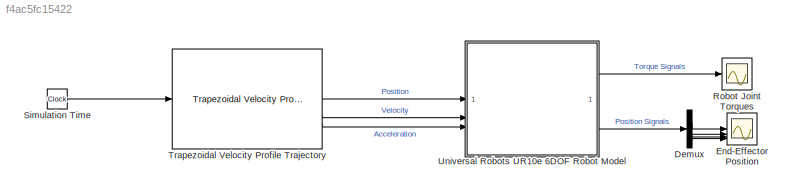
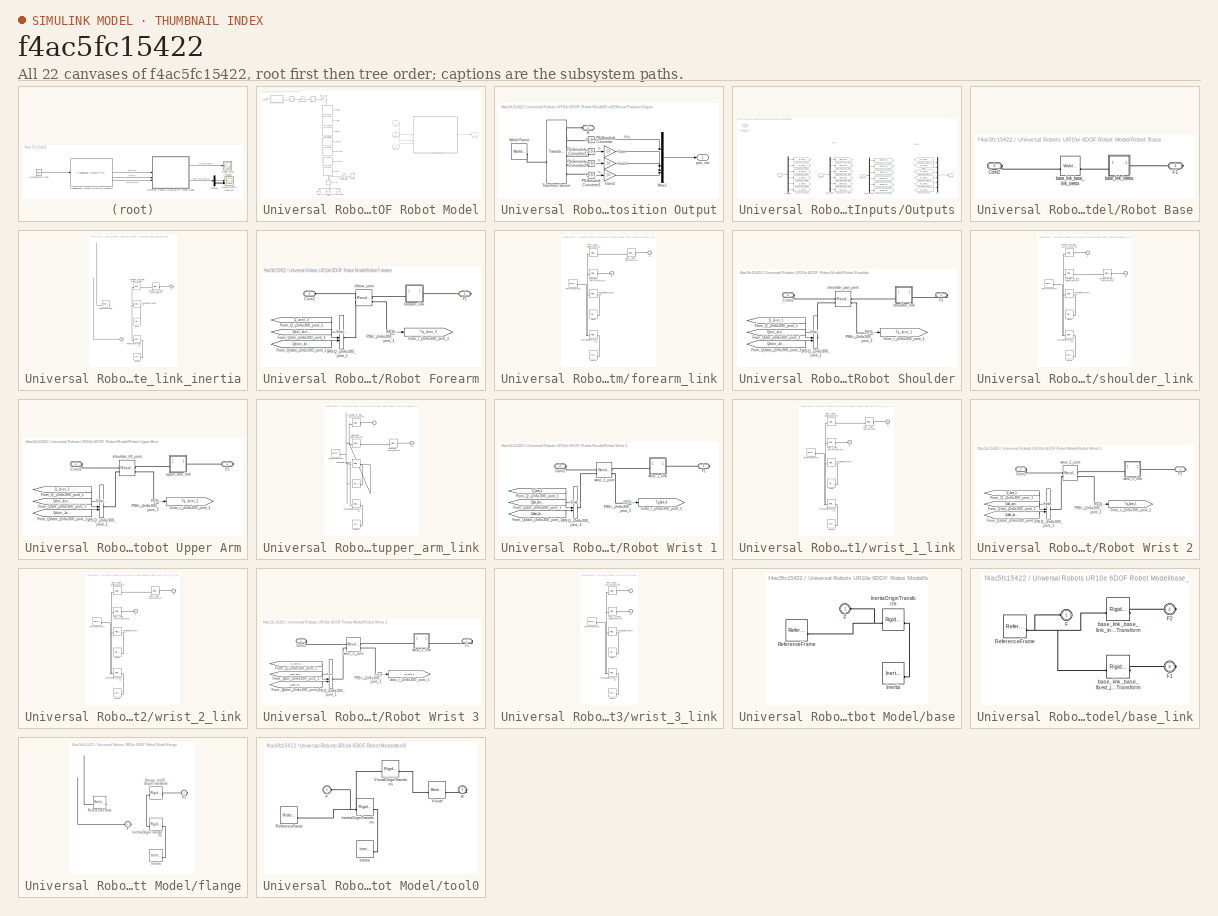
[diagram: thumbnail index - all 22 canvases of the model, root first then tree order]
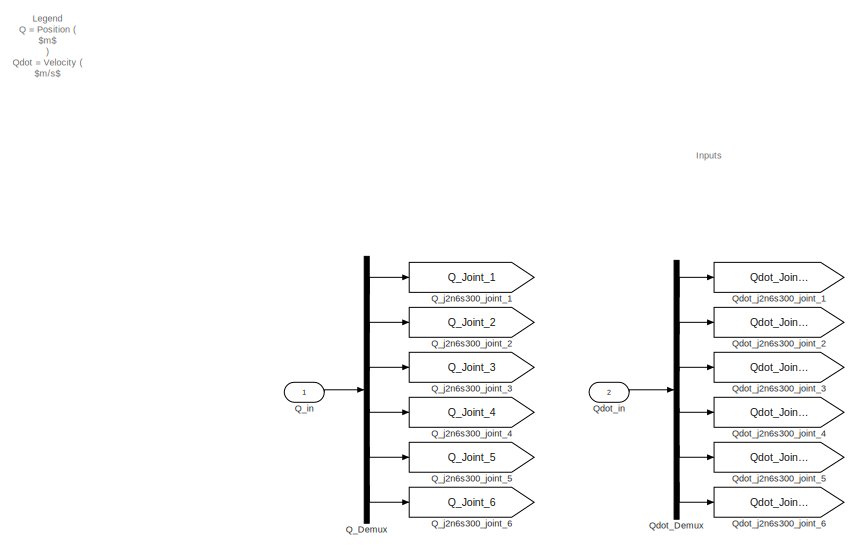
[diagram: Universal Robots UR10e 6DOF Robot Model/Physics Inputs/Outputs - part 1/2, left side, full height]
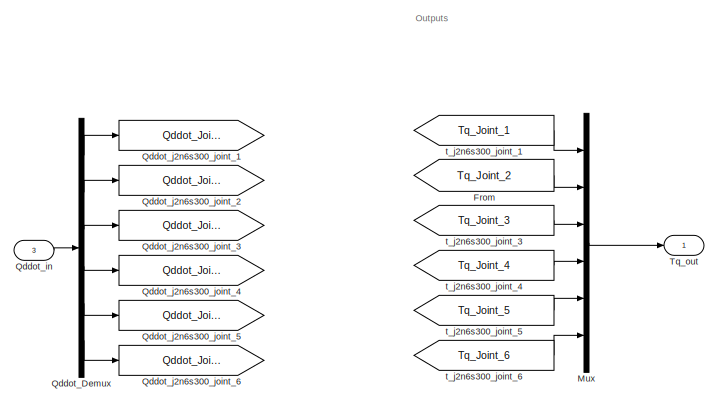
[diagram: Universal Robots UR10e 6DOF Robot Model/Physics Inputs/Outputs - part 2/2, middle right region]
MODEL slx_f4ac5fc15422
KIND model
CONFIG AbsTol = auto
CONFIG EnableMultiTasking = off
CONFIG FixedStep = auto
CONFIG MaxStep = auto
CONFIG MinStep = auto
CONFIG RelTol = 1e-3
CONFIG SampleTimeConstraint = Unconstrained
CONFIG SolverName = VariableStepAuto
CONFIG StartTime = 0.0
CONFIG StopTime = 6
BLOCK [Demux] Demux
BLOCK [Scope] End-Effector Position
  Floating = off
  NumInputPorts = 4
  ScopeSpecificationString = Simulink.scopes.TimeScopeBlockCfg('CurrentConfiguration', extmgr.ConfigurationSet(extmgr.Configuration('Core','General UI',true),extmgr.Configuration('Core','Source UI',true),extmgr.Configuration('Sources','WiredSimulink',true,'DataLoggingVariableName','ScopeData1'),extmgr.Configuration('Visuals','Time Domain',true,'SerializedDisplays',{struct('MinYLimReal','67.80638','MaxYLimReal','192.46596','YL...<+3934ch>
BLOCK [Scope] Robot Joint Torques
  Floating = off
  NumInputPorts = 1
  ScopeSpecificationString = Simulink.scopes.TimeScopeBlockCfg('CurrentConfiguration', extmgr.ConfigurationSet(extmgr.Configuration('Core','General UI',true),extmgr.Configuration('Core','Source UI',true),extmgr.Configuration('Sources','WiredSimulink',true),extmgr.Configuration('Visuals','Time Domain',true,'SerializedDisplays',{struct('MinYLimReal','-112603.19431','MaxYLimReal','1012511.46603','YLabelReal','Torque (N*m)','MinY...<+1957ch>
BLOCK [Clock] Simulation Time
BLOCK [Reference] Trapezoidal Velocity Profile Trajectory  REF=robotcorelib/Trapezoidal Velocity Profile Trajectory
  LibrarySourceBlock = robotutilslib/Trapezoidal Velocity Profile Trajectory
  SourceBlock = robotcorelib/Trapezoidal Velocity Profile Trajectory
  SourceType = robotics.slcore.internal.block.TrapVelTrajSys
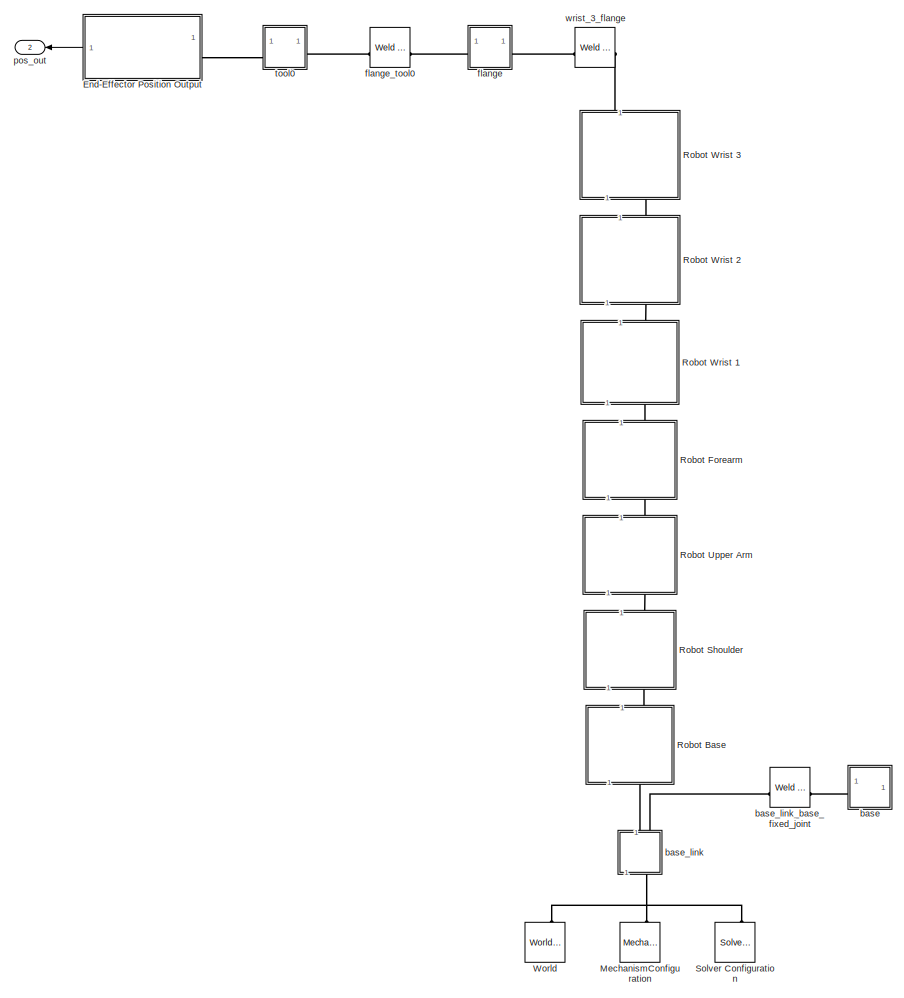
[diagram: Universal Robots UR10e 6DOF Robot Model - part 1/2, left side, full height]
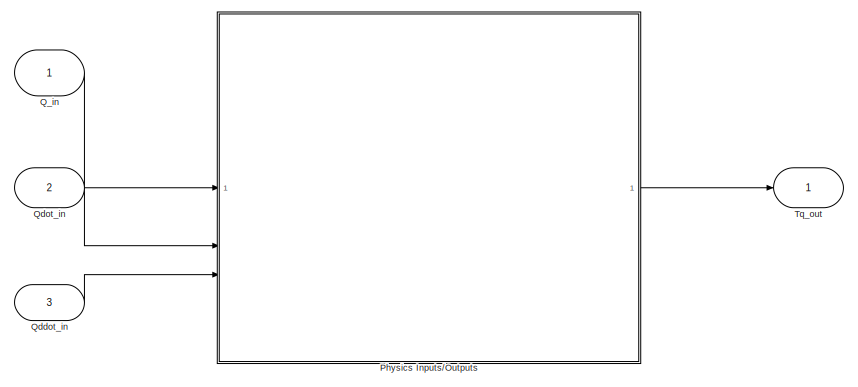
[diagram: Universal Robots UR10e 6DOF Robot Model - part 2/2, middle right region]
BLOCK [SubSystem] Universal Robots UR10e 6DOF Robot Model
  ShowPortLabels = none
BLOCK [SubSystem] Universal Robots UR10e 6DOF Robot Model/End-Effector Position Output
BLOCK [Gain] Universal Robots UR10e 6DOF Robot Model/End-Effector Position Output/Gain
  Gain = 10
BLOCK [Gain] Universal Robots UR10e 6DOF Robot Model/End-Effector Position Output/Gain1
  Gain = 10
BLOCK [Gain] Universal Robots UR10e 6DOF Robot Model/End-Effector Position Output/Gain2
  Gain = 10
BLOCK [Mux] Universal Robots UR10e 6DOF Robot Model/End-Effector Position Output/Mux1
  DisplayOption = bar
BLOCK [Reference] Universal Robots UR10e 6DOF Robot Model/End-Effector Position Output/PS-Simulink Converter  REF=nesl_utility/PS-Simulink
Converter
  SourceBlock = nesl_utility/PS-Simulink\nConverter
  SourceType = PS-Simulink\nConverter
BLOCK [Reference] Universal Robots UR10e 6DOF Robot Model/End-Effector Position Output/PS-Simulink Converter1  REF=nesl_utility/PS-Simulink
Converter
  SourceBlock = nesl_utility/PS-Simulink\nConverter
  SourceType = PS-Simulink\nConverter
BLOCK [Reference] Universal Robots UR10e 6DOF Robot Model/End-Effector Position Output/PS-Simulink Converter2  REF=nesl_utility/PS-Simulink
Converter
  SourceBlock = nesl_utility/PS-Simulink\nConverter
  SourceType = PS-Simulink\nConverter
BLOCK [Reference] Universal Robots UR10e 6DOF Robot Model/End-Effector Position Output/PS-Simulink Converter3  REF=nesl_utility/PS-Simulink
Converter
  SourceBlock = nesl_utility/PS-Simulink\nConverter
  SourceType = PS-Simulink\nConverter
BLOCK [PMIOPort] Universal Robots UR10e 6DOF Robot Model/End-Effector Position Output/R
  Side = Left
BLOCK [Reference] Universal Robots UR10e 6DOF Robot Model/End-Effector Position Output/Transform Sensor  REF=sm_lib/Frames and
Transforms/Transform
Sensor
  SourceBlock = sm_lib/Frames and\nTransforms/Transform\nSensor
  SourceType = Transform\nSensor
BLOCK [Reference] Universal Robots UR10e 6DOF Robot Model/End-Effector Position Output/World Frame  REF=sm_lib/Frames and
Transforms/World Frame
  SourceBlock = sm_lib/Frames and\nTransforms/World Frame
  SourceType = World Frame
BLOCK [Outport] Universal Robots UR10e 6DOF Robot Model/End-Effector Position Output/pos_out
BLOCK [Reference] Universal Robots UR10e 6DOF Robot Model/MechanismConfiguration  REF=sm_lib/Utilities/Mechanism
Configuration
  NameLocation = right
  SourceBlock = sm_lib/Utilities/Mechanism\nConfiguration
  SourceType = Mechanism\nConfiguration
BLOCK [SubSystem] Universal Robots UR10e 6DOF Robot Model/Physics Inputs//Outputs
BLOCK [From] Universal Robots UR10e 6DOF Robot Model/Physics Inputs//Outputs/From
  GotoTag = Tq_Joint_2
  TagVisibility = global
BLOCK [Mux] Universal Robots UR10e 6DOF Robot Model/Physics Inputs//Outputs/Mux
  DisplayOption = bar
  Inputs = 6
BLOCK [Demux] Universal Robots UR10e 6DOF Robot Model/Physics Inputs//Outputs/Q_Demux
  Outputs = 6
BLOCK [Inport] Universal Robots UR10e 6DOF Robot Model/Physics Inputs//Outputs/Q_in
BLOCK [Goto] Universal Robots UR10e 6DOF Robot Model/Physics Inputs//Outputs/Q_j2n6s300_joint_1
  GotoTag = Q_Joint_1
  TagVisibility = global
BLOCK [Goto] Universal Robots UR10e 6DOF Robot Model/Physics Inputs//Outputs/Q_j2n6s300_joint_2
  GotoTag = Q_Joint_2
  TagVisibility = global
BLOCK [Goto] Universal Robots UR10e 6DOF Robot Model/Physics Inputs//Outputs/Q_j2n6s300_joint_3
  GotoTag = Q_Joint_3
  TagVisibility = global
BLOCK [Goto] Universal Robots UR10e 6DOF Robot Model/Physics Inputs//Outputs/Q_j2n6s300_joint_4
  GotoTag = Q_Joint_4
  TagVisibility = global
BLOCK [Goto] Universal Robots UR10e 6DOF Robot Model/Physics Inputs//Outputs/Q_j2n6s300_joint_5
  GotoTag = Q_Joint_5
  TagVisibility = global
BLOCK [Goto] Universal Robots UR10e 6DOF Robot Model/Physics Inputs//Outputs/Q_j2n6s300_joint_6
  GotoTag = Q_Joint_6
  TagVisibility = global
BLOCK [Demux] Universal Robots UR10e 6DOF Robot Model/Physics Inputs//Outputs/Qddot_Demux
  Outputs = 6
BLOCK [Inport] Universal Robots UR10e 6DOF Robot Model/Physics Inputs//Outputs/Qddot_in
  Port = 3
BLOCK [Goto] Universal Robots UR10e 6DOF Robot Model/Physics Inputs//Outputs/Qddot_j2n6s300_joint_1
  GotoTag = Qddot_Joint_1
  TagVisibility = global
BLOCK [Goto] Universal Robots UR10e 6DOF Robot Model/Physics Inputs//Outputs/Qddot_j2n6s300_joint_2
  GotoTag = Qddot_Joint_2
  TagVisibility = global
BLOCK [Goto] Universal Robots UR10e 6DOF Robot Model/Physics Inputs//Outputs/Qddot_j2n6s300_joint_3
  GotoTag = Qddot_Joint_3
  TagVisibility = global
BLOCK [Goto] Universal Robots UR10e 6DOF Robot Model/Physics Inputs//Outputs/Qddot_j2n6s300_joint_4
  GotoTag = Qddot_Joint_4
  TagVisibility = global
BLOCK [Goto] Universal Robots UR10e 6DOF Robot Model/Physics Inputs//Outputs/Qddot_j2n6s300_joint_5
  GotoTag = Qddot_Joint_5
  TagVisibility = global
BLOCK [Goto] Universal Robots UR10e 6DOF Robot Model/Physics Inputs//Outputs/Qddot_j2n6s300_joint_6
  GotoTag = Qddot_Joint_6
  TagVisibility = global
BLOCK [Demux] Universal Robots UR10e 6DOF Robot Model/Physics Inputs//Outputs/Qdot_Demux
  Outputs = 6
BLOCK [Inport] Universal Robots UR10e 6DOF Robot Model/Physics Inputs//Outputs/Qdot_in
  Port = 2
BLOCK [Goto] Universal Robots UR10e 6DOF Robot Model/Physics Inputs//Outputs/Qdot_j2n6s300_joint_1
  GotoTag = Qdot_Joint_1
  TagVisibility = global
BLOCK [Goto] Universal Robots UR10e 6DOF Robot Model/Physics Inputs//Outputs/Qdot_j2n6s300_joint_2
  GotoTag = Qdot_Joint_2
  TagVisibility = global
BLOCK [Goto] Universal Robots UR10e 6DOF Robot Model/Physics Inputs//Outputs/Qdot_j2n6s300_joint_3
  GotoTag = Qdot_Joint_3
  TagVisibility = global
BLOCK [Goto] Universal Robots UR10e 6DOF Robot Model/Physics Inputs//Outputs/Qdot_j2n6s300_joint_4
  GotoTag = Qdot_Joint_4
  TagVisibility = global
BLOCK [Goto] Universal Robots UR10e 6DOF Robot Model/Physics Inputs//Outputs/Qdot_j2n6s300_joint_5
  GotoTag = Qdot_Joint_5
  TagVisibility = global
BLOCK [Goto] Universal Robots UR10e 6DOF Robot Model/Physics Inputs//Outputs/Qdot_j2n6s300_joint_6
  GotoTag = Qdot_Joint_6
  TagVisibility = global
BLOCK [Outport] Universal Robots UR10e 6DOF Robot Model/Physics Inputs//Outputs/Tq_out
BLOCK [From] Universal Robots UR10e 6DOF Robot Model/Physics Inputs//Outputs/t_j2n6s300_joint_1
  GotoTag = Tq_Joint_1
  TagVisibility = global
BLOCK [From] Universal Robots UR10e 6DOF Robot Model/Physics Inputs//Outputs/t_j2n6s300_joint_3
  GotoTag = Tq_Joint_3
  TagVisibility = global
BLOCK [From] Universal Robots UR10e 6DOF Robot Model/Physics Inputs//Outputs/t_j2n6s300_joint_4
  GotoTag = Tq_Joint_4
  TagVisibility = global
BLOCK [From] Universal Robots UR10e 6DOF Robot Model/Physics Inputs//Outputs/t_j2n6s300_joint_5
  GotoTag = Tq_Joint_5
  TagVisibility = global
BLOCK [From] Universal Robots UR10e 6DOF Robot Model/Physics Inputs//Outputs/t_j2n6s300_joint_6
  GotoTag = Tq_Joint_6
  TagVisibility = global
BLOCK [Inport] Universal Robots UR10e 6DOF Robot Model/Q_in
BLOCK [Inport] Universal Robots UR10e 6DOF Robot Model/Qddot_in
  Port = 3
BLOCK [Inport] Universal Robots UR10e 6DOF Robot Model/Qdot_in
  Port = 2
BLOCK [SubSystem] Universal Robots UR10e 6DOF Robot Model/Robot Base
  NameLocation = right
  ShowPortLabels = none
BLOCK [PMIOPort] Universal Robots UR10e 6DOF Robot Model/Robot Base/Conn2
  Port = 2
  Side = Left
BLOCK [PMIOPort] Universal Robots UR10e 6DOF Robot Model/Robot Base/F1
  Side = Right
BLOCK [Reference] Universal Robots UR10e 6DOF Robot Model/Robot Base/base_link_base_link_inertia  REF=sm_lib/Joints/Weld Joint
  NameLocation = top
  SourceBlock = sm_lib/Joints/Weld Joint
  SourceType = Weld Joint
BLOCK [SubSystem] Universal Robots UR10e 6DOF Robot Model/Robot Base/base_link_inertia
BLOCK [PMIOPort] Universal Robots UR10e 6DOF Robot Model/Robot Base/base_link_inertia/F
  Side = Left
BLOCK [PMIOPort] Universal Robots UR10e 6DOF Robot Model/Robot Base/base_link_inertia/F1
  Port = 2
  Side = Right
BLOCK [Reference] Universal Robots UR10e 6DOF Robot Model/Robot Base/base_link_inertia/Inertia  REF=sm_lib/Body Elements/Inertia
  SourceBlock = sm_lib/Body Elements/Inertia
  SourceType = Inertia
BLOCK [Reference] Universal Robots UR10e 6DOF Robot Model/Robot Base/base_link_inertia/InertiaOriginTransform  REF=sm_lib/Frames and
Transforms/Rigid
Transform
  SourceBlock = sm_lib/Frames and\nTransforms/Rigid\nTransform
  SourceType = Rigid\nTransform
BLOCK [Reference] Universal Robots UR10e 6DOF Robot Model/Robot Base/base_link_inertia/ReferenceFrame  REF=sm_lib/Frames and
Transforms/Reference
Frame
  SourceBlock = sm_lib/Frames and\nTransforms/Reference\nFrame
  SourceType = Reference\nFrame
BLOCK [Reference] Universal Robots UR10e 6DOF Robot Model/Robot Base/base_link_inertia/Visual  REF=sm_lib/Body Elements/File Solid
  SourceBlock = sm_lib/Body Elements/File Solid
  SourceType = File Solid
BLOCK [Reference] Universal Robots UR10e 6DOF Robot Model/Robot Base/base_link_inertia/VisualOriginTransform  REF=sm_lib/Frames and
Transforms/Rigid
Transform
  NameLocation = top
  SourceBlock = sm_lib/Frames and\nTransforms/Rigid\nTransform
  SourceType = Rigid\nTransform
BLOCK [Reference] Universal Robots UR10e 6DOF Robot Model/Robot Base/base_link_inertia/shoulder_pan_joint_AxisTransform  REF=sm_lib/Frames and
Transforms/Rigid
Transform
  SourceBlock = sm_lib/Frames and\nTransforms/Rigid\nTransform
  SourceType = Rigid\nTransform
BLOCK [Reference] Universal Robots UR10e 6DOF Robot Model/Robot Base/base_link_inertia/shoulder_pan_joint_OriginTransform  REF=sm_lib/Frames and
Transforms/Rigid
Transform
  NameLocation = top
  SourceBlock = sm_lib/Frames and\nTransforms/Rigid\nTransform
  SourceType = Rigid\nTransform
BLOCK [SubSystem] Universal Robots UR10e 6DOF Robot Model/Robot Forearm
  NameLocation = right
  ShowPortLabels = none
BLOCK [PMIOPort] Universal Robots UR10e 6DOF Robot Model/Robot Forearm/Conn2
  Port = 2
  Side = Left
BLOCK [PMIOPort] Universal Robots UR10e 6DOF Robot Model/Robot Forearm/F1
  Side = Right
BLOCK [From] Universal Robots UR10e 6DOF Robot Model/Robot Forearm/From_Q_j2n6s300_joint_1
  GotoTag = Q_Joint_3
  TagVisibility = global
BLOCK [From] Universal Robots UR10e 6DOF Robot Model/Robot Forearm/From_Qddot_j2n6s300_joint_1
  GotoTag = Qddot_Joint_3
  TagVisibility = global
BLOCK [From] Universal Robots UR10e 6DOF Robot Model/Robot Forearm/From_Qdot_j2n6s300_joint_1
  GotoTag = Qdot_Joint_3
  TagVisibility = global
BLOCK [Goto] Universal Robots UR10e 6DOF Robot Model/Robot Forearm/Goto_t_j2n6s300_joint_1
  GotoTag = Tq_Joint_3
  TagVisibility = global
BLOCK [Reference] Universal Robots UR10e 6DOF Robot Model/Robot Forearm/PSS t_j2n6s300_joint_1  REF=nesl_utility/PS-Simulink
Converter
  NameLocation = top
  SourceBlock = nesl_utility/PS-Simulink\nConverter
  SourceType = PS-Simulink\nConverter
BLOCK [Reference] Universal Robots UR10e 6DOF Robot Model/Robot Forearm/SPS Q_j2n6s300_joint_1  REF=nesl_utility/Simulink-PS
Converter
  SourceBlock = nesl_utility/Simulink-PS\nConverter
  SourceType = Simulink-PS\nConverter
BLOCK [Reference] Universal Robots UR10e 6DOF Robot Model/Robot Forearm/elbow_joint  REF=sm_lib/Joints/Revolute Joint
  SourceBlock = sm_lib/Joints/Revolute Joint
  SourceType = Revolute Joint
BLOCK [SubSystem] Universal Robots UR10e 6DOF Robot Model/Robot Forearm/forearm_link
BLOCK [PMIOPort] Universal Robots UR10e 6DOF Robot Model/Robot Forearm/forearm_link/F
  Side = Left
BLOCK [PMIOPort] Universal Robots UR10e 6DOF Robot Model/Robot Forearm/forearm_link/F1
  Port = 2
  Side = Right
BLOCK [Reference] Universal Robots UR10e 6DOF Robot Model/Robot Forearm/forearm_link/Inertia  REF=sm_lib/Body Elements/Inertia
  SourceBlock = sm_lib/Body Elements/Inertia
  SourceType = Inertia
BLOCK [Reference] Universal Robots UR10e 6DOF Robot Model/Robot Forearm/forearm_link/InertiaOriginTransform  REF=sm_lib/Frames and
Transforms/Rigid
Transform
  SourceBlock = sm_lib/Frames and\nTransforms/Rigid\nTransform
  SourceType = Rigid\nTransform
BLOCK [Reference] Universal Robots UR10e 6DOF Robot Model/Robot Forearm/forearm_link/ReferenceFrame  REF=sm_lib/Frames and
Transforms/Reference
Frame
  SourceBlock = sm_lib/Frames and\nTransforms/Reference\nFrame
  SourceType = Reference\nFrame
BLOCK [Reference] Universal Robots UR10e 6DOF Robot Model/Robot Forearm/forearm_link/Visual  REF=sm_lib/Body Elements/File Solid
  SourceBlock = sm_lib/Body Elements/File Solid
  SourceType = File Solid
BLOCK [Reference] Universal Robots UR10e 6DOF Robot Model/Robot Forearm/forearm_link/VisualOriginTransform  REF=sm_lib/Frames and
Transforms/Rigid
Transform
  SourceBlock = sm_lib/Frames and\nTransforms/Rigid\nTransform
  SourceType = Rigid\nTransform
BLOCK [Reference] Universal Robots UR10e 6DOF Robot Model/Robot Forearm/forearm_link/elbow_joint_AxisInvTransform  REF=sm_lib/Frames and
Transforms/Rigid
Transform
  SourceBlock = sm_lib/Frames and\nTransforms/Rigid\nTransform
  SourceType = Rigid\nTransform
BLOCK [Reference] Universal Robots UR10e 6DOF Robot Model/Robot Forearm/forearm_link/wrist_1_joint_AxisTransform  REF=sm_lib/Frames and
Transforms/Rigid
Transform
  SourceBlock = sm_lib/Frames and\nTransforms/Rigid\nTransform
  SourceType = Rigid\nTransform
BLOCK [Reference] Universal Robots UR10e 6DOF Robot Model/Robot Forearm/forearm_link/wrist_1_joint_OriginTransform  REF=sm_lib/Frames and
Transforms/Rigid
Transform
  SourceBlock = sm_lib/Frames and\nTransforms/Rigid\nTransform
  SourceType = Rigid\nTransform
BLOCK [SubSystem] Universal Robots UR10e 6DOF Robot Model/Robot Shoulder
  NameLocation = right
  ShowPortLabels = none
BLOCK [PMIOPort] Universal Robots UR10e 6DOF Robot Model/Robot Shoulder/Conn2
  Port = 2
  Side = Left
BLOCK [PMIOPort] Universal Robots UR10e 6DOF Robot Model/Robot Shoulder/F1
  Side = Right
BLOCK [From] Universal Robots UR10e 6DOF Robot Model/Robot Shoulder/From_Q_j2n6s300_joint_1
  GotoTag = Q_Joint_1
  TagVisibility = global
BLOCK [From] Universal Robots UR10e 6DOF Robot Model/Robot Shoulder/From_Qddot_j2n6s300_joint_1
  GotoTag = Qddot_Joint_1
  TagVisibility = global
BLOCK [From] Universal Robots UR10e 6DOF Robot Model/Robot Shoulder/From_Qdot_j2n6s300_joint_1
  GotoTag = Qdot_Joint_1
  TagVisibility = global
BLOCK [Goto] Universal Robots UR10e 6DOF Robot Model/Robot Shoulder/Goto_t_j2n6s300_joint_1
  GotoTag = Tq_Joint_1
  TagVisibility = global
BLOCK [Reference] Universal Robots UR10e 6DOF Robot Model/Robot Shoulder/PSS t_j2n6s300_joint_1  REF=nesl_utility/PS-Simulink
Converter
  NameLocation = top
  SourceBlock = nesl_utility/PS-Simulink\nConverter
  SourceType = PS-Simulink\nConverter
BLOCK [Reference] Universal Robots UR10e 6DOF Robot Model/Robot Shoulder/SPS Q_j2n6s300_joint_1  REF=nesl_utility/Simulink-PS
Converter
  SourceBlock = nesl_utility/Simulink-PS\nConverter
  SourceType = Simulink-PS\nConverter
BLOCK [SubSystem] Universal Robots UR10e 6DOF Robot Model/Robot Shoulder/shoulder_link
BLOCK [PMIOPort] Universal Robots UR10e 6DOF Robot Model/Robot Shoulder/shoulder_link/F
  Side = Left
BLOCK [PMIOPort] Universal Robots UR10e 6DOF Robot Model/Robot Shoulder/shoulder_link/F1
  Port = 2
  Side = Right
BLOCK [Reference] Universal Robots UR10e 6DOF Robot Model/Robot Shoulder/shoulder_link/Inertia  REF=sm_lib/Body Elements/Inertia
  SourceBlock = sm_lib/Body Elements/Inertia
  SourceType = Inertia
BLOCK [Reference] Universal Robots UR10e 6DOF Robot Model/Robot Shoulder/shoulder_link/InertiaOriginTransform  REF=sm_lib/Frames and
Transforms/Rigid
Transform
  SourceBlock = sm_lib/Frames and\nTransforms/Rigid\nTransform
  SourceType = Rigid\nTransform
BLOCK [Reference] Universal Robots UR10e 6DOF Robot Model/Robot Shoulder/shoulder_link/ReferenceFrame  REF=sm_lib/Frames and
Transforms/Reference
Frame
  SourceBlock = sm_lib/Frames and\nTransforms/Reference\nFrame
  SourceType = Reference\nFrame
BLOCK [Reference] Universal Robots UR10e 6DOF Robot Model/Robot Shoulder/shoulder_link/Visual  REF=sm_lib/Body Elements/File Solid
  SourceBlock = sm_lib/Body Elements/File Solid
  SourceType = File Solid
BLOCK [Reference] Universal Robots UR10e 6DOF Robot Model/Robot Shoulder/shoulder_link/VisualOriginTransform  REF=sm_lib/Frames and
Transforms/Rigid
Transform
  SourceBlock = sm_lib/Frames and\nTransforms/Rigid\nTransform
  SourceType = Rigid\nTransform
BLOCK [Reference] Universal Robots UR10e 6DOF Robot Model/Robot Shoulder/shoulder_link/shoulder_lift_joint_AxisTransform  REF=sm_lib/Frames and
Transforms/Rigid
Transform
  SourceBlock = sm_lib/Frames and\nTransforms/Rigid\nTransform
  SourceType = Rigid\nTransform
BLOCK [Reference] Universal Robots UR10e 6DOF Robot Model/Robot Shoulder/shoulder_link/shoulder_lift_joint_OriginTransform  REF=sm_lib/Frames and
Transforms/Rigid
Transform
  SourceBlock = sm_lib/Frames and\nTransforms/Rigid\nTransform
  SourceType = Rigid\nTransform
BLOCK [Reference] Universal Robots UR10e 6DOF Robot Model/Robot Shoulder/shoulder_link/shoulder_pan_joint_AxisInvTransform  REF=sm_lib/Frames and
Transforms/Rigid
Transform
  SourceBlock = sm_lib/Frames and\nTransforms/Rigid\nTransform
  SourceType = Rigid\nTransform
BLOCK [Reference] Universal Robots UR10e 6DOF Robot Model/Robot Shoulder/shoulder_pan_joint  REF=sm_lib/Joints/Revolute Joint
  SourceBlock = sm_lib/Joints/Revolute Joint
  SourceType = Revolute Joint
BLOCK [SubSystem] Universal Robots UR10e 6DOF Robot Model/Robot Upper Arm
  NameLocation = right
  ShowPortLabels = none
BLOCK [PMIOPort] Universal Robots UR10e 6DOF Robot Model/Robot Upper Arm/Conn2
  Port = 2
  Side = Left
BLOCK [PMIOPort] Universal Robots UR10e 6DOF Robot Model/Robot Upper Arm/F1
  Side = Right
BLOCK [From] Universal Robots UR10e 6DOF Robot Model/Robot Upper Arm/From_Q_j2n6s300_joint_1
  GotoTag = Q_Joint_2
  TagVisibility = global
BLOCK [From] Universal Robots UR10e 6DOF Robot Model/Robot Upper Arm/From_Qddot_j2n6s300_joint_1
  GotoTag = Qddot_Joint_2
  TagVisibility = global
BLOCK [From] Universal Robots UR10e 6DOF Robot Model/Robot Upper Arm/From_Qdot_j2n6s300_joint_1
  GotoTag = Qdot_Joint_2
  TagVisibility = global
BLOCK [Goto] Universal Robots UR10e 6DOF Robot Model/Robot Upper Arm/Goto_t_j2n6s300_joint_1
  GotoTag = Tq_Joint_2
  TagVisibility = global
BLOCK [Reference] Universal Robots UR10e 6DOF Robot Model/Robot Upper Arm/PSS t_j2n6s300_joint_1  REF=nesl_utility/PS-Simulink
Converter
  NameLocation = top
  SourceBlock = nesl_utility/PS-Simulink\nConverter
  SourceType = PS-Simulink\nConverter
BLOCK [Reference] Universal Robots UR10e 6DOF Robot Model/Robot Upper Arm/SPS Q_j2n6s300_joint_1  REF=nesl_utility/Simulink-PS
Converter
  SourceBlock = nesl_utility/Simulink-PS\nConverter
  SourceType = Simulink-PS\nConverter
BLOCK [Reference] Universal Robots UR10e 6DOF Robot Model/Robot Upper Arm/shoulder_lift_joint  REF=sm_lib/Joints/Revolute Joint
  SourceBlock = sm_lib/Joints/Revolute Joint
  SourceType = Revolute Joint
BLOCK [SubSystem] Universal Robots UR10e 6DOF Robot Model/Robot Upper Arm/upper_arm_link
BLOCK [PMIOPort] Universal Robots UR10e 6DOF Robot Model/Robot Upper Arm/upper_arm_link/F
  Side = Left
BLOCK [PMIOPort] Universal Robots UR10e 6DOF Robot Model/Robot Upper Arm/upper_arm_link/F1
  Port = 2
  Side = Right
BLOCK [Reference] Universal Robots UR10e 6DOF Robot Model/Robot Upper Arm/upper_arm_link/Inertia  REF=sm_lib/Body Elements/Inertia
  SourceBlock = sm_lib/Body Elements/Inertia
  SourceType = Inertia
BLOCK [Reference] Universal Robots UR10e 6DOF Robot Model/Robot Upper Arm/upper_arm_link/InertiaOriginTransform  REF=sm_lib/Frames and
Transforms/Rigid
Transform
  SourceBlock = sm_lib/Frames and\nTransforms/Rigid\nTransform
  SourceType = Rigid\nTransform
BLOCK [Reference] Universal Robots UR10e 6DOF Robot Model/Robot Upper Arm/upper_arm_link/ReferenceFrame  REF=sm_lib/Frames and
Transforms/Reference
Frame
  SourceBlock = sm_lib/Frames and\nTransforms/Reference\nFrame
  SourceType = Reference\nFrame
BLOCK [Reference] Universal Robots UR10e 6DOF Robot Model/Robot Upper Arm/upper_arm_link/Visual  REF=sm_lib/Body Elements/File Solid
  SourceBlock = sm_lib/Body Elements/File Solid
  SourceType = File Solid
BLOCK [Reference] Universal Robots UR10e 6DOF Robot Model/Robot Upper Arm/upper_arm_link/VisualOriginTransform  REF=sm_lib/Frames and
Transforms/Rigid
Transform
  SourceBlock = sm_lib/Frames and\nTransforms/Rigid\nTransform
  SourceType = Rigid\nTransform
BLOCK [Reference] Universal Robots UR10e 6DOF Robot Model/Robot Upper Arm/upper_arm_link/elbow_joint_AxisTransform  REF=sm_lib/Frames and
Transforms/Rigid
Transform
  SourceBlock = sm_lib/Frames and\nTransforms/Rigid\nTransform
  SourceType = Rigid\nTransform
BLOCK [Reference] Universal Robots UR10e 6DOF Robot Model/Robot Upper Arm/upper_arm_link/elbow_joint_OriginTransform  REF=sm_lib/Frames and
Transforms/Rigid
Transform
  SourceBlock = sm_lib/Frames and\nTransforms/Rigid\nTransform
  SourceType = Rigid\nTransform
BLOCK [Reference] Universal Robots UR10e 6DOF Robot Model/Robot Upper Arm/upper_arm_link/shoulder_lift_joint_AxisInvTransform  REF=sm_lib/Frames and
Transforms/Rigid
Transform
  SourceBlock = sm_lib/Frames and\nTransforms/Rigid\nTransform
  SourceType = Rigid\nTransform
BLOCK [SubSystem] Universal Robots UR10e 6DOF Robot Model/Robot Wrist 1
  NameLocation = right
  ShowPortLabels = none
BLOCK [PMIOPort] Universal Robots UR10e 6DOF Robot Model/Robot Wrist 1/Conn2
  Port = 2
  Side = Left
BLOCK [PMIOPort] Universal Robots UR10e 6DOF Robot Model/Robot Wrist 1/F1
  Side = Right
BLOCK [From] Universal Robots UR10e 6DOF Robot Model/Robot Wrist 1/From_Q_j2n6s300_joint_1
  GotoTag = Q_Joint_4
  TagVisibility = global
BLOCK [From] Universal Robots UR10e 6DOF Robot Model/Robot Wrist 1/From_Qddot_j2n6s300_joint_1
  GotoTag = Qddot_Joint_4
  TagVisibility = global
BLOCK [From] Universal Robots UR10e 6DOF Robot Model/Robot Wrist 1/From_Qdot_j2n6s300_joint_1
  GotoTag = Qdot_Joint_4
  TagVisibility = global
BLOCK [Goto] Universal Robots UR10e 6DOF Robot Model/Robot Wrist 1/Goto_t_j2n6s300_joint_1
  GotoTag = Tq_Joint_4
  TagVisibility = global
BLOCK [Reference] Universal Robots UR10e 6DOF Robot Model/Robot Wrist 1/PSS t_j2n6s300_joint_1  REF=nesl_utility/PS-Simulink
Converter
  NameLocation = top
  SourceBlock = nesl_utility/PS-Simulink\nConverter
  SourceType = PS-Simulink\nConverter
BLOCK [Reference] Universal Robots UR10e 6DOF Robot Model/Robot Wrist 1/SPS Q_j2n6s300_joint_1  REF=nesl_utility/Simulink-PS
Converter
  SourceBlock = nesl_utility/Simulink-PS\nConverter
  SourceType = Simulink-PS\nConverter
BLOCK [Reference] Universal Robots UR10e 6DOF Robot Model/Robot Wrist 1/wrist_1_joint  REF=sm_lib/Joints/Revolute Joint
  SourceBlock = sm_lib/Joints/Revolute Joint
  SourceType = Revolute Joint
BLOCK [SubSystem] Universal Robots UR10e 6DOF Robot Model/Robot Wrist 1/wrist_1_link
BLOCK [PMIOPort] Universal Robots UR10e 6DOF Robot Model/Robot Wrist 1/wrist_1_link/F
  Side = Left
BLOCK [PMIOPort] Universal Robots UR10e 6DOF Robot Model/Robot Wrist 1/wrist_1_link/F1
  Port = 2
  Side = Right
BLOCK [Reference] Universal Robots UR10e 6DOF Robot Model/Robot Wrist 1/wrist_1_link/Inertia  REF=sm_lib/Body Elements/Inertia
  SourceBlock = sm_lib/Body Elements/Inertia
  SourceType = Inertia
BLOCK [Reference] Universal Robots UR10e 6DOF Robot Model/Robot Wrist 1/wrist_1_link/InertiaOriginTransform  REF=sm_lib/Frames and
Transforms/Rigid
Transform
  SourceBlock = sm_lib/Frames and\nTransforms/Rigid\nTransform
  SourceType = Rigid\nTransform
BLOCK [Reference] Universal Robots UR10e 6DOF Robot Model/Robot Wrist 1/wrist_1_link/ReferenceFrame  REF=sm_lib/Frames and
Transforms/Reference
Frame
  SourceBlock = sm_lib/Frames and\nTransforms/Reference\nFrame
  SourceType = Reference\nFrame
BLOCK [Reference] Universal Robots UR10e 6DOF Robot Model/Robot Wrist 1/wrist_1_link/Visual  REF=sm_lib/Body Elements/File Solid
  SourceBlock = sm_lib/Body Elements/File Solid
  SourceType = File Solid
BLOCK [Reference] Universal Robots UR10e 6DOF Robot Model/Robot Wrist 1/wrist_1_link/VisualOriginTransform  REF=sm_lib/Frames and
Transforms/Rigid
Transform
  SourceBlock = sm_lib/Frames and\nTransforms/Rigid\nTransform
  SourceType = Rigid\nTransform
BLOCK [Reference] Universal Robots UR10e 6DOF Robot Model/Robot Wrist 1/wrist_1_link/wrist_1_joint_AxisInvTransform  REF=sm_lib/Frames and
Transforms/Rigid
Transform
  SourceBlock = sm_lib/Frames and\nTransforms/Rigid\nTransform
  SourceType = Rigid\nTransform
BLOCK [Reference] Universal Robots UR10e 6DOF Robot Model/Robot Wrist 1/wrist_1_link/wrist_2_joint_AxisTransform  REF=sm_lib/Frames and
Transforms/Rigid
Transform
  SourceBlock = sm_lib/Frames and\nTransforms/Rigid\nTransform
  SourceType = Rigid\nTransform
BLOCK [Reference] Universal Robots UR10e 6DOF Robot Model/Robot Wrist 1/wrist_1_link/wrist_2_joint_OriginTransform  REF=sm_lib/Frames and
Transforms/Rigid
Transform
  SourceBlock = sm_lib/Frames and\nTransforms/Rigid\nTransform
  SourceType = Rigid\nTransform
BLOCK [SubSystem] Universal Robots UR10e 6DOF Robot Model/Robot Wrist 2
  NameLocation = right
  ShowPortLabels = none
BLOCK [PMIOPort] Universal Robots UR10e 6DOF Robot Model/Robot Wrist 2/Conn2
  Port = 2
  Side = Left
BLOCK [PMIOPort] Universal Robots UR10e 6DOF Robot Model/Robot Wrist 2/F1
  Side = Right
BLOCK [From] Universal Robots UR10e 6DOF Robot Model/Robot Wrist 2/From_Q_j2n6s300_joint_1
  GotoTag = Q_Joint_5
  TagVisibility = global
BLOCK [From] Universal Robots UR10e 6DOF Robot Model/Robot Wrist 2/From_Qddot_j2n6s300_joint_1
  GotoTag = Qddot_Joint_5
  TagVisibility = global
BLOCK [From] Universal Robots UR10e 6DOF Robot Model/Robot Wrist 2/From_Qdot_j2n6s300_joint_1
  GotoTag = Qdot_Joint_5
  TagVisibility = global
BLOCK [Goto] Universal Robots UR10e 6DOF Robot Model/Robot Wrist 2/Goto_t_j2n6s300_joint_1
  GotoTag = Tq_Joint_5
  TagVisibility = global
BLOCK [Reference] Universal Robots UR10e 6DOF Robot Model/Robot Wrist 2/PSS t_j2n6s300_joint_1  REF=nesl_utility/PS-Simulink
Converter
  NameLocation = top
  SourceBlock = nesl_utility/PS-Simulink\nConverter
  SourceType = PS-Simulink\nConverter
BLOCK [Reference] Universal Robots UR10e 6DOF Robot Model/Robot Wrist 2/SPS Q_j2n6s300_joint_1  REF=nesl_utility/Simulink-PS
Converter
  SourceBlock = nesl_utility/Simulink-PS\nConverter
  SourceType = Simulink-PS\nConverter
BLOCK [Reference] Universal Robots UR10e 6DOF Robot Model/Robot Wrist 2/wrist_2_joint  REF=sm_lib/Joints/Revolute Joint
  SourceBlock = sm_lib/Joints/Revolute Joint
  SourceType = Revolute Joint
BLOCK [SubSystem] Universal Robots UR10e 6DOF Robot Model/Robot Wrist 2/wrist_2_link
BLOCK [PMIOPort] Universal Robots UR10e 6DOF Robot Model/Robot Wrist 2/wrist_2_link/F
  Side = Left
BLOCK [PMIOPort] Universal Robots UR10e 6DOF Robot Model/Robot Wrist 2/wrist_2_link/F1
  Port = 2
  Side = Right
BLOCK [Reference] Universal Robots UR10e 6DOF Robot Model/Robot Wrist 2/wrist_2_link/Inertia  REF=sm_lib/Body Elements/Inertia
  SourceBlock = sm_lib/Body Elements/Inertia
  SourceType = Inertia
BLOCK [Reference] Universal Robots UR10e 6DOF Robot Model/Robot Wrist 2/wrist_2_link/InertiaOriginTransform  REF=sm_lib/Frames and
Transforms/Rigid
Transform
  SourceBlock = sm_lib/Frames and\nTransforms/Rigid\nTransform
  SourceType = Rigid\nTransform
BLOCK [Reference] Universal Robots UR10e 6DOF Robot Model/Robot Wrist 2/wrist_2_link/ReferenceFrame  REF=sm_lib/Frames and
Transforms/Reference
Frame
  SourceBlock = sm_lib/Frames and\nTransforms/Reference\nFrame
  SourceType = Reference\nFrame
BLOCK [Reference] Universal Robots UR10e 6DOF Robot Model/Robot Wrist 2/wrist_2_link/Visual  REF=sm_lib/Body Elements/File Solid
  SourceBlock = sm_lib/Body Elements/File Solid
  SourceType = File Solid
BLOCK [Reference] Universal Robots UR10e 6DOF Robot Model/Robot Wrist 2/wrist_2_link/VisualOriginTransform  REF=sm_lib/Frames and
Transforms/Rigid
Transform
  SourceBlock = sm_lib/Frames and\nTransforms/Rigid\nTransform
  SourceType = Rigid\nTransform
BLOCK [Reference] Universal Robots UR10e 6DOF Robot Model/Robot Wrist 2/wrist_2_link/wrist_2_joint_AxisInvTransform  REF=sm_lib/Frames and
Transforms/Rigid
Transform
  SourceBlock = sm_lib/Frames and\nTransforms/Rigid\nTransform
  SourceType = Rigid\nTransform
BLOCK [Reference] Universal Robots UR10e 6DOF Robot Model/Robot Wrist 2/wrist_2_link/wrist_3_joint_AxisTransform  REF=sm_lib/Frames and
Transforms/Rigid
Transform
  SourceBlock = sm_lib/Frames and\nTransforms/Rigid\nTransform
  SourceType = Rigid\nTransform
BLOCK [Reference] Universal Robots UR10e 6DOF Robot Model/Robot Wrist 2/wrist_2_link/wrist_3_joint_OriginTransform  REF=sm_lib/Frames and
Transforms/Rigid
Transform
  SourceBlock = sm_lib/Frames and\nTransforms/Rigid\nTransform
  SourceType = Rigid\nTransform
BLOCK [SubSystem] Universal Robots UR10e 6DOF Robot Model/Robot Wrist 3
  NameLocation = right
  ShowPortLabels = none
BLOCK [PMIOPort] Universal Robots UR10e 6DOF Robot Model/Robot Wrist 3/Conn2
  Port = 2
  Side = Left
BLOCK [PMIOPort] Universal Robots UR10e 6DOF Robot Model/Robot Wrist 3/F1
  Side = Right
BLOCK [From] Universal Robots UR10e 6DOF Robot Model/Robot Wrist 3/From_Q_j2n6s300_joint_1
  GotoTag = Q_Joint_6
  TagVisibility = global
BLOCK [From] Universal Robots UR10e 6DOF Robot Model/Robot Wrist 3/From_Qddot_j2n6s300_joint_1
  GotoTag = Qddot_Joint_6
  TagVisibility = global
BLOCK [From] Universal Robots UR10e 6DOF Robot Model/Robot Wrist 3/From_Qdot_j2n6s300_joint_1
  GotoTag = Qdot_Joint_6
  TagVisibility = global
BLOCK [Goto] Universal Robots UR10e 6DOF Robot Model/Robot Wrist 3/Goto_t_j2n6s300_joint_1
  GotoTag = Tq_Joint_6
  TagVisibility = global
BLOCK [Reference] Universal Robots UR10e 6DOF Robot Model/Robot Wrist 3/PSS t_j2n6s300_joint_1  REF=nesl_utility/PS-Simulink
Converter
  NameLocation = top
  SourceBlock = nesl_utility/PS-Simulink\nConverter
  SourceType = PS-Simulink\nConverter
BLOCK [Reference] Universal Robots UR10e 6DOF Robot Model/Robot Wrist 3/SPS Q_j2n6s300_joint_1  REF=nesl_utility/Simulink-PS
Converter
  SourceBlock = nesl_utility/Simulink-PS\nConverter
  SourceType = Simulink-PS\nConverter
BLOCK [Reference] Universal Robots UR10e 6DOF Robot Model/Robot Wrist 3/wrist_3_joint  REF=sm_lib/Joints/Revolute Joint
  SourceBlock = sm_lib/Joints/Revolute Joint
  SourceType = Revolute Joint
BLOCK [SubSystem] Universal Robots UR10e 6DOF Robot Model/Robot Wrist 3/wrist_3_link
BLOCK [PMIOPort] Universal Robots UR10e 6DOF Robot Model/Robot Wrist 3/wrist_3_link/F
  Side = Left
BLOCK [PMIOPort] Universal Robots UR10e 6DOF Robot Model/Robot Wrist 3/wrist_3_link/F1
  Port = 2
  Side = Right
BLOCK [Reference] Universal Robots UR10e 6DOF Robot Model/Robot Wrist 3/wrist_3_link/Inertia  REF=sm_lib/Body Elements/Inertia
  SourceBlock = sm_lib/Body Elements/Inertia
  SourceType = Inertia
BLOCK [Reference] Universal Robots UR10e 6DOF Robot Model/Robot Wrist 3/wrist_3_link/InertiaOriginTransform  REF=sm_lib/Frames and
Transforms/Rigid
Transform
  SourceBlock = sm_lib/Frames and\nTransforms/Rigid\nTransform
  SourceType = Rigid\nTransform
BLOCK [Reference] Universal Robots UR10e 6DOF Robot Model/Robot Wrist 3/wrist_3_link/ReferenceFrame  REF=sm_lib/Frames and
Transforms/Reference
Frame
  SourceBlock = sm_lib/Frames and\nTransforms/Reference\nFrame
  SourceType = Reference\nFrame
BLOCK [Reference] Universal Robots UR10e 6DOF Robot Model/Robot Wrist 3/wrist_3_link/Visual  REF=sm_lib/Body Elements/File Solid
  SourceBlock = sm_lib/Body Elements/File Solid
  SourceType = File Solid
BLOCK [Reference] Universal Robots UR10e 6DOF Robot Model/Robot Wrist 3/wrist_3_link/VisualOriginTransform  REF=sm_lib/Frames and
Transforms/Rigid
Transform
  SourceBlock = sm_lib/Frames and\nTransforms/Rigid\nTransform
  SourceType = Rigid\nTransform
BLOCK [Reference] Universal Robots UR10e 6DOF Robot Model/Robot Wrist 3/wrist_3_link/wrist_3_flange_OriginTransform  REF=sm_lib/Frames and
Transforms/Rigid
Transform
  SourceBlock = sm_lib/Frames and\nTransforms/Rigid\nTransform
  SourceType = Rigid\nTransform
BLOCK [Reference] Universal Robots UR10e 6DOF Robot Model/Robot Wrist 3/wrist_3_link/wrist_3_joint_AxisInvTransform  REF=sm_lib/Frames and
Transforms/Rigid
Transform
  SourceBlock = sm_lib/Frames and\nTransforms/Rigid\nTransform
  SourceType = Rigid\nTransform
BLOCK [Reference] Universal Robots UR10e 6DOF Robot Model/Solver Configuration  REF=nesl_utility/Solver
Configuration
  NameLocation = right
  SourceBlock = nesl_utility/Solver\nConfiguration
  SourceType = Solver\nConfiguration
BLOCK [Outport] Universal Robots UR10e 6DOF Robot Model/Tq_out
BLOCK [Reference] Universal Robots UR10e 6DOF Robot Model/World  REF=sm_lib/Frames and
Transforms/World Frame
  NameLocation = right
  SourceBlock = sm_lib/Frames and\nTransforms/World Frame
  SourceType = World Frame
BLOCK [SubSystem] Universal Robots UR10e 6DOF Robot Model/base
BLOCK [PMIOPort] Universal Robots UR10e 6DOF Robot Model/base/F
  Side = Left
BLOCK [Reference] Universal Robots UR10e 6DOF Robot Model/base/Inertia  REF=sm_lib/Body Elements/Inertia
  SourceBlock = sm_lib/Body Elements/Inertia
  SourceType = Inertia
BLOCK [Reference] Universal Robots UR10e 6DOF Robot Model/base/InertiaOriginTransform  REF=sm_lib/Frames and
Transforms/Rigid
Transform
  SourceBlock = sm_lib/Frames and\nTransforms/Rigid\nTransform
  SourceType = Rigid\nTransform
BLOCK [Reference] Universal Robots UR10e 6DOF Robot Model/base/ReferenceFrame  REF=sm_lib/Frames and
Transforms/Reference
Frame
  SourceBlock = sm_lib/Frames and\nTransforms/Reference\nFrame
  SourceType = Reference\nFrame
BLOCK [SubSystem] Universal Robots UR10e 6DOF Robot Model/base_link
  NameLocation = right
BLOCK [PMIOPort] Universal Robots UR10e 6DOF Robot Model/base_link/F
  Side = Left
BLOCK [PMIOPort] Universal Robots UR10e 6DOF Robot Model/base_link/F1
  Port = 3
  Side = Right
BLOCK [PMIOPort] Universal Robots UR10e 6DOF Robot Model/base_link/F2
  Port = 2
  Side = Right
BLOCK [Reference] Universal Robots UR10e 6DOF Robot Model/base_link/ReferenceFrame  REF=sm_lib/Frames and
Transforms/Reference
Frame
  SourceBlock = sm_lib/Frames and\nTransforms/Reference\nFrame
  SourceType = Reference\nFrame
BLOCK [Reference] Universal Robots UR10e 6DOF Robot Model/base_link/base_link_base_fixed_joint_OriginTransform  REF=sm_lib/Frames and
Transforms/Rigid
Transform
  SourceBlock = sm_lib/Frames and\nTransforms/Rigid\nTransform
  SourceType = Rigid\nTransform
BLOCK [Reference] Universal Robots UR10e 6DOF Robot Model/base_link/base_link_base_link_inertia_OriginTransform  REF=sm_lib/Frames and
Transforms/Rigid
Transform
  NameLocation = top
  SourceBlock = sm_lib/Frames and\nTransforms/Rigid\nTransform
  SourceType = Rigid\nTransform
BLOCK [Reference] Universal Robots UR10e 6DOF Robot Model/base_link_base_fixed_joint  REF=sm_lib/Joints/Weld Joint
  SourceBlock = sm_lib/Joints/Weld Joint
  SourceType = Weld Joint
BLOCK [SubSystem] Universal Robots UR10e 6DOF Robot Model/flange
  NameLocation = top
BLOCK [PMIOPort] Universal Robots UR10e 6DOF Robot Model/flange/F
  Side = Left
BLOCK [PMIOPort] Universal Robots UR10e 6DOF Robot Model/flange/F1
  Port = 2
  Side = Right
BLOCK [Reference] Universal Robots UR10e 6DOF Robot Model/flange/Inertia  REF=sm_lib/Body Elements/Inertia
  SourceBlock = sm_lib/Body Elements/Inertia
  SourceType = Inertia
BLOCK [Reference] Universal Robots UR10e 6DOF Robot Model/flange/InertiaOriginTransform  REF=sm_lib/Frames and
Transforms/Rigid
Transform
  SourceBlock = sm_lib/Frames and\nTransforms/Rigid\nTransform
  SourceType = Rigid\nTransform
BLOCK [Reference] Universal Robots UR10e 6DOF Robot Model/flange/ReferenceFrame  REF=sm_lib/Frames and
Transforms/Reference
Frame
  SourceBlock = sm_lib/Frames and\nTransforms/Reference\nFrame
  SourceType = Reference\nFrame
BLOCK [Reference] Universal Robots UR10e 6DOF Robot Model/flange/flange_tool0_OriginTransform  REF=sm_lib/Frames and
Transforms/Rigid
Transform
  SourceBlock = sm_lib/Frames and\nTransforms/Rigid\nTransform
  SourceType = Rigid\nTransform
BLOCK [Reference] Universal Robots UR10e 6DOF Robot Model/flange_tool0  REF=sm_lib/Joints/Weld Joint
  NameLocation = top
  SourceBlock = sm_lib/Joints/Weld Joint
  SourceType = Weld Joint
BLOCK [Outport] Universal Robots UR10e 6DOF Robot Model/pos_out
  Port = 2
BLOCK [SubSystem] Universal Robots UR10e 6DOF Robot Model/tool0
  NameLocation = top
BLOCK [PMIOPort] Universal Robots UR10e 6DOF Robot Model/tool0/F
  Side = Left
BLOCK [Reference] Universal Robots UR10e 6DOF Robot Model/tool0/Inertia  REF=sm_lib/Body Elements/Inertia
  SourceBlock = sm_lib/Body Elements/Inertia
  SourceType = Inertia
BLOCK [Reference] Universal Robots UR10e 6DOF Robot Model/tool0/InertiaOriginTransform  REF=sm_lib/Frames and
Transforms/Rigid
Transform
  SourceBlock = sm_lib/Frames and\nTransforms/Rigid\nTransform
  SourceType = Rigid\nTransform
BLOCK [PMIOPort] Universal Robots UR10e 6DOF Robot Model/tool0/R
  Port = 2
  Side = Right
BLOCK [Reference] Universal Robots UR10e 6DOF Robot Model/tool0/ReferenceFrame  REF=sm_lib/Frames and
Transforms/Reference
Frame
  SourceBlock = sm_lib/Frames and\nTransforms/Reference\nFrame
  SourceType = Reference\nFrame
BLOCK [Reference] Universal Robots UR10e 6DOF Robot Model/tool0/Visual  REF=sm_lib/Body Elements/Brick Solid
  SourceBlock = sm_lib/Body Elements/Brick Solid
  SourceType = Brick Solid
BLOCK [Reference] Universal Robots UR10e 6DOF Robot Model/tool0/VisualOriginTransform  REF=sm_lib/Frames and
Transforms/Rigid
Transform
  SourceBlock = sm_lib/Frames and\nTransforms/Rigid\nTransform
  SourceType = Rigid\nTransform
BLOCK [Reference] Universal Robots UR10e 6DOF Robot Model/wrist_3_flange  REF=sm_lib/Joints/Weld Joint
  NameLocation = top
  SourceBlock = sm_lib/Joints/Weld Joint
  SourceType = Weld Joint
ANNOTATION Universal Robots UR10e 6DOF Robot Model/Physics Inputs//Outputs: Inputs
ANNOTATION Universal Robots UR10e 6DOF Robot Model/Physics Inputs//Outputs: Outputs
ANNOTATION Universal Robots UR10e 6DOF Robot Model/Physics Inputs//Outputs: Legend Q = Position ( $m$ ) Qdot = Velocity ( $m/s$ ) Qddot = Acceleration ( $m/s^2$ ) Tq = Torque ( $N$\cdot$m$ )
LINE Demux:1 -> End-Effector Position:1
LINE Demux:2 -> End-Effector Position:2
LINE Demux:3 -> End-Effector Position:3
LINE Demux:4 -> End-Effector Position:4
LINE Simulation Time:1 -> Trapezoidal Velocity Profile Trajectory:1
LINE Trapezoidal Velocity Profile Trajectory:1 -> Universal Robots UR10e 6DOF Robot Model:1
LINE Trapezoidal Velocity Profile Trajectory:2 -> Universal Robots UR10e 6DOF Robot Model:2
LINE Trapezoidal Velocity Profile Trajectory:3 -> Universal Robots UR10e 6DOF Robot Model:3
LINE Universal Robots UR10e 6DOF Robot Model/End-Effector Position Output/Gain1:1 -> Universal Robots UR10e 6DOF Robot Model/End-Effector Position Output/Mux1:3
LINE Universal Robots UR10e 6DOF Robot Model/End-Effector Position Output/Gain2:1 -> Universal Robots UR10e 6DOF Robot Model/End-Effector Position Output/Mux1:4
LINE Universal Robots UR10e 6DOF Robot Model/End-Effector Position Output/Gain:1 -> Universal Robots UR10e 6DOF Robot Model/End-Effector Position Output/Mux1:2
LINE Universal Robots UR10e 6DOF Robot Model/End-Effector Position Output/Mux1:1 -> Universal Robots UR10e 6DOF Robot Model/End-Effector Position Output/pos_out:1
LINE Universal Robots UR10e 6DOF Robot Model/End-Effector Position Output/PS-Simulink Converter1:1 -> Universal Robots UR10e 6DOF Robot Model/End-Effector Position Output/Gain:1
LINE Universal Robots UR10e 6DOF Robot Model/End-Effector Position Output/PS-Simulink Converter2:1 -> Universal Robots UR10e 6DOF Robot Model/End-Effector Position Output/Gain1:1
LINE Universal Robots UR10e 6DOF Robot Model/End-Effector Position Output/PS-Simulink Converter3:1 -> Universal Robots UR10e 6DOF Robot Model/End-Effector Position Output/Gain2:1
LINE Universal Robots UR10e 6DOF Robot Model/End-Effector Position Output/PS-Simulink Converter:1 -> Universal Robots UR10e 6DOF Robot Model/End-Effector Position Output/Mux1:1
LINE Universal Robots UR10e 6DOF Robot Model/End-Effector Position Output:1 -> Universal Robots UR10e 6DOF Robot Model/pos_out:1
LINE Universal Robots UR10e 6DOF Robot Model/Physics Inputs//Outputs/From:1 -> Universal Robots UR10e 6DOF Robot Model/Physics Inputs//Outputs/Mux:2
LINE Universal Robots UR10e 6DOF Robot Model/Physics Inputs//Outputs/Mux:1 -> Universal Robots UR10e 6DOF Robot Model/Physics Inputs//Outputs/Tq_out:1
LINE Universal Robots UR10e 6DOF Robot Model/Physics Inputs//Outputs/Q_Demux:1 -> Universal Robots UR10e 6DOF Robot Model/Physics Inputs//Outputs/Q_j2n6s300_joint_1:1
LINE Universal Robots UR10e 6DOF Robot Model/Physics Inputs//Outputs/Q_Demux:2 -> Universal Robots UR10e 6DOF Robot Model/Physics Inputs//Outputs/Q_j2n6s300_joint_2:1
LINE Universal Robots UR10e 6DOF Robot Model/Physics Inputs//Outputs/Q_Demux:3 -> Universal Robots UR10e 6DOF Robot Model/Physics Inputs//Outputs/Q_j2n6s300_joint_3:1
LINE Universal Robots UR10e 6DOF Robot Model/Physics Inputs//Outputs/Q_Demux:4 -> Universal Robots UR10e 6DOF Robot Model/Physics Inputs//Outputs/Q_j2n6s300_joint_4:1
LINE Universal Robots UR10e 6DOF Robot Model/Physics Inputs//Outputs/Q_Demux:5 -> Universal Robots UR10e 6DOF Robot Model/Physics Inputs//Outputs/Q_j2n6s300_joint_5:1
LINE Universal Robots UR10e 6DOF Robot Model/Physics Inputs//Outputs/Q_Demux:6 -> Universal Robots UR10e 6DOF Robot Model/Physics Inputs//Outputs/Q_j2n6s300_joint_6:1
LINE Universal Robots UR10e 6DOF Robot Model/Physics Inputs//Outputs/Q_in:1 -> Universal Robots UR10e 6DOF Robot Model/Physics Inputs//Outputs/Q_Demux:1
LINE Universal Robots UR10e 6DOF Robot Model/Physics Inputs//Outputs/Qddot_Demux:1 -> Universal Robots UR10e 6DOF Robot Model/Physics Inputs//Outputs/Qddot_j2n6s300_joint_1:1
LINE Universal Robots UR10e 6DOF Robot Model/Physics Inputs//Outputs/Qddot_Demux:2 -> Universal Robots UR10e 6DOF Robot Model/Physics Inputs//Outputs/Qddot_j2n6s300_joint_2:1
LINE Universal Robots UR10e 6DOF Robot Model/Physics Inputs//Outputs/Qddot_Demux:3 -> Universal Robots UR10e 6DOF Robot Model/Physics Inputs//Outputs/Qddot_j2n6s300_joint_3:1
LINE Universal Robots UR10e 6DOF Robot Model/Physics Inputs//Outputs/Qddot_Demux:4 -> Universal Robots UR10e 6DOF Robot Model/Physics Inputs//Outputs/Qddot_j2n6s300_joint_4:1
LINE Universal Robots UR10e 6DOF Robot Model/Physics Inputs//Outputs/Qddot_Demux:5 -> Universal Robots UR10e 6DOF Robot Model/Physics Inputs//Outputs/Qddot_j2n6s300_joint_5:1
LINE Universal Robots UR10e 6DOF Robot Model/Physics Inputs//Outputs/Qddot_Demux:6 -> Universal Robots UR10e 6DOF Robot Model/Physics Inputs//Outputs/Qddot_j2n6s300_joint_6:1
LINE Universal Robots UR10e 6DOF Robot Model/Physics Inputs//Outputs/Qddot_in:1 -> Universal Robots UR10e 6DOF Robot Model/Physics Inputs//Outputs/Qddot_Demux:1
LINE Universal Robots UR10e 6DOF Robot Model/Physics Inputs//Outputs/Qdot_Demux:1 -> Universal Robots UR10e 6DOF Robot Model/Physics Inputs//Outputs/Qdot_j2n6s300_joint_1:1
LINE Universal Robots UR10e 6DOF Robot Model/Physics Inputs//Outputs/Qdot_Demux:2 -> Universal Robots UR10e 6DOF Robot Model/Physics Inputs//Outputs/Qdot_j2n6s300_joint_2:1
LINE Universal Robots UR10e 6DOF Robot Model/Physics Inputs//Outputs/Qdot_Demux:3 -> Universal Robots UR10e 6DOF Robot Model/Physics Inputs//Outputs/Qdot_j2n6s300_joint_3:1
LINE Universal Robots UR10e 6DOF Robot Model/Physics Inputs//Outputs/Qdot_Demux:4 -> Universal Robots UR10e 6DOF Robot Model/Physics Inputs//Outputs/Qdot_j2n6s300_joint_4:1
LINE Universal Robots UR10e 6DOF Robot Model/Physics Inputs//Outputs/Qdot_Demux:5 -> Universal Robots UR10e 6DOF Robot Model/Physics Inputs//Outputs/Qdot_j2n6s300_joint_5:1
LINE Universal Robots UR10e 6DOF Robot Model/Physics Inputs//Outputs/Qdot_Demux:6 -> Universal Robots UR10e 6DOF Robot Model/Physics Inputs//Outputs/Qdot_j2n6s300_joint_6:1
LINE Universal Robots UR10e 6DOF Robot Model/Physics Inputs//Outputs/Qdot_in:1 -> Universal Robots UR10e 6DOF Robot Model/Physics Inputs//Outputs/Qdot_Demux:1
LINE Universal Robots UR10e 6DOF Robot Model/Physics Inputs//Outputs/t_j2n6s300_joint_1:1 -> Universal Robots UR10e 6DOF Robot Model/Physics Inputs//Outputs/Mux:1
LINE Universal Robots UR10e 6DOF Robot Model/Physics Inputs//Outputs/t_j2n6s300_joint_3:1 -> Universal Robots UR10e 6DOF Robot Model/Physics Inputs//Outputs/Mux:3
LINE Universal Robots UR10e 6DOF Robot Model/Physics Inputs//Outputs/t_j2n6s300_joint_4:1 -> Universal Robots UR10e 6DOF Robot Model/Physics Inputs//Outputs/Mux:4
LINE Universal Robots UR10e 6DOF Robot Model/Physics Inputs//Outputs/t_j2n6s300_joint_5:1 -> Universal Robots UR10e 6DOF Robot Model/Physics Inputs//Outputs/Mux:5
LINE Universal Robots UR10e 6DOF Robot Model/Physics Inputs//Outputs/t_j2n6s300_joint_6:1 -> Universal Robots UR10e 6DOF Robot Model/Physics Inputs//Outputs/Mux:6
LINE Universal Robots UR10e 6DOF Robot Model/Physics Inputs//Outputs:1 -> Universal Robots UR10e 6DOF Robot Model/Tq_out:1
LINE Universal Robots UR10e 6DOF Robot Model/Q_in:1 -> Universal Robots UR10e 6DOF Robot Model/Physics Inputs//Outputs:1
LINE Universal Robots UR10e 6DOF Robot Model/Qddot_in:1 -> Universal Robots UR10e 6DOF Robot Model/Physics Inputs//Outputs:3
LINE Universal Robots UR10e 6DOF Robot Model/Qdot_in:1 -> Universal Robots UR10e 6DOF Robot Model/Physics Inputs//Outputs:2
LINE Universal Robots UR10e 6DOF Robot Model/Robot Forearm/From_Q_j2n6s300_joint_1:1 -> Universal Robots UR10e 6DOF Robot Model/Robot Forearm/SPS Q_j2n6s300_joint_1:1
LINE Universal Robots UR10e 6DOF Robot Model/Robot Forearm/From_Qddot_j2n6s300_joint_1:1 -> Universal Robots UR10e 6DOF Robot Model/Robot Forearm/SPS Q_j2n6s300_joint_1:3
LINE Universal Robots UR10e 6DOF Robot Model/Robot Forearm/From_Qdot_j2n6s300_joint_1:1 -> Universal Robots UR10e 6DOF Robot Model/Robot Forearm/SPS Q_j2n6s300_joint_1:2
LINE Universal Robots UR10e 6DOF Robot Model/Robot Forearm/PSS t_j2n6s300_joint_1:1 -> Universal Robots UR10e 6DOF Robot Model/Robot Forearm/Goto_t_j2n6s300_joint_1:1
LINE Universal Robots UR10e 6DOF Robot Model/Robot Shoulder/From_Q_j2n6s300_joint_1:1 -> Universal Robots UR10e 6DOF Robot Model/Robot Shoulder/SPS Q_j2n6s300_joint_1:1
LINE Universal Robots UR10e 6DOF Robot Model/Robot Shoulder/From_Qddot_j2n6s300_joint_1:1 -> Universal Robots UR10e 6DOF Robot Model/Robot Shoulder/SPS Q_j2n6s300_joint_1:3
LINE Universal Robots UR10e 6DOF Robot Model/Robot Shoulder/From_Qdot_j2n6s300_joint_1:1 -> Universal Robots UR10e 6DOF Robot Model/Robot Shoulder/SPS Q_j2n6s300_joint_1:2
LINE Universal Robots UR10e 6DOF Robot Model/Robot Shoulder/PSS t_j2n6s300_joint_1:1 -> Universal Robots UR10e 6DOF Robot Model/Robot Shoulder/Goto_t_j2n6s300_joint_1:1
LINE Universal Robots UR10e 6DOF Robot Model/Robot Upper Arm/From_Q_j2n6s300_joint_1:1 -> Universal Robots UR10e 6DOF Robot Model/Robot Upper Arm/SPS Q_j2n6s300_joint_1:1
LINE Universal Robots UR10e 6DOF Robot Model/Robot Upper Arm/From_Qddot_j2n6s300_joint_1:1 -> Universal Robots UR10e 6DOF Robot Model/Robot Upper Arm/SPS Q_j2n6s300_joint_1:3
LINE Universal Robots UR10e 6DOF Robot Model/Robot Upper Arm/From_Qdot_j2n6s300_joint_1:1 -> Universal Robots UR10e 6DOF Robot Model/Robot Upper Arm/SPS Q_j2n6s300_joint_1:2
LINE Universal Robots UR10e 6DOF Robot Model/Robot Upper Arm/PSS t_j2n6s300_joint_1:1 -> Universal Robots UR10e 6DOF Robot Model/Robot Upper Arm/Goto_t_j2n6s300_joint_1:1
LINE Universal Robots UR10e 6DOF Robot Model/Robot Wrist 1/From_Q_j2n6s300_joint_1:1 -> Universal Robots UR10e 6DOF Robot Model/Robot Wrist 1/SPS Q_j2n6s300_joint_1:1
LINE Universal Robots UR10e 6DOF Robot Model/Robot Wrist 1/From_Qddot_j2n6s300_joint_1:1 -> Universal Robots UR10e 6DOF Robot Model/Robot Wrist 1/SPS Q_j2n6s300_joint_1:3
LINE Universal Robots UR10e 6DOF Robot Model/Robot Wrist 1/From_Qdot_j2n6s300_joint_1:1 -> Universal Robots UR10e 6DOF Robot Model/Robot Wrist 1/SPS Q_j2n6s300_joint_1:2
LINE Universal Robots UR10e 6DOF Robot Model/Robot Wrist 1/PSS t_j2n6s300_joint_1:1 -> Universal Robots UR10e 6DOF Robot Model/Robot Wrist 1/Goto_t_j2n6s300_joint_1:1
LINE Universal Robots UR10e 6DOF Robot Model/Robot Wrist 2/From_Q_j2n6s300_joint_1:1 -> Universal Robots UR10e 6DOF Robot Model/Robot Wrist 2/SPS Q_j2n6s300_joint_1:1
LINE Universal Robots UR10e 6DOF Robot Model/Robot Wrist 2/From_Qddot_j2n6s300_joint_1:1 -> Universal Robots UR10e 6DOF Robot Model/Robot Wrist 2/SPS Q_j2n6s300_joint_1:3
LINE Universal Robots UR10e 6DOF Robot Model/Robot Wrist 2/From_Qdot_j2n6s300_joint_1:1 -> Universal Robots UR10e 6DOF Robot Model/Robot Wrist 2/SPS Q_j2n6s300_joint_1:2
LINE Universal Robots UR10e 6DOF Robot Model/Robot Wrist 2/PSS t_j2n6s300_joint_1:1 -> Universal Robots UR10e 6DOF Robot Model/Robot Wrist 2/Goto_t_j2n6s300_joint_1:1
LINE Universal Robots UR10e 6DOF Robot Model/Robot Wrist 3/From_Q_j2n6s300_joint_1:1 -> Universal Robots UR10e 6DOF Robot Model/Robot Wrist 3/SPS Q_j2n6s300_joint_1:1
LINE Universal Robots UR10e 6DOF Robot Model/Robot Wrist 3/From_Qddot_j2n6s300_joint_1:1 -> Universal Robots UR10e 6DOF Robot Model/Robot Wrist 3/SPS Q_j2n6s300_joint_1:3
LINE Universal Robots UR10e 6DOF Robot Model/Robot Wrist 3/From_Qdot_j2n6s300_joint_1:1 -> Universal Robots UR10e 6DOF Robot Model/Robot Wrist 3/SPS Q_j2n6s300_joint_1:2
LINE Universal Robots UR10e 6DOF Robot Model/Robot Wrist 3/PSS t_j2n6s300_joint_1:1 -> Universal Robots UR10e 6DOF Robot Model/Robot Wrist 3/Goto_t_j2n6s300_joint_1:1
LINE Universal Robots UR10e 6DOF Robot Model:1 -> Robot Joint Torques:1
LINE Universal Robots UR10e 6DOF Robot Model:2 -> Demux:1
PLINE Universal Robots UR10e 6DOF Robot Model/End-Effector Position Output/PS-Simulink Converter1:LConn1 -- Universal Robots UR10e 6DOF Robot Model/End-Effector Position Output/Transform Sensor:RConn3
PLINE Universal Robots UR10e 6DOF Robot Model/End-Effector Position Output/PS-Simulink Converter2:LConn1 -- Universal Robots UR10e 6DOF Robot Model/End-Effector Position Output/Transform Sensor:RConn4
PLINE Universal Robots UR10e 6DOF Robot Model/End-Effector Position Output/PS-Simulink Converter3:LConn1 -- Universal Robots UR10e 6DOF Robot Model/End-Effector Position Output/Transform Sensor:RConn5
PLINE Universal Robots UR10e 6DOF Robot Model/End-Effector Position Output/PS-Simulink Converter:LConn1 -- Universal Robots UR10e 6DOF Robot Model/End-Effector Position Output/Transform Sensor:RConn2
PLINE Universal Robots UR10e 6DOF Robot Model/End-Effector Position Output/R:RConn1 -- Universal Robots UR10e 6DOF Robot Model/End-Effector Position Output/Transform Sensor:RConn1
PLINE Universal Robots UR10e 6DOF Robot Model/End-Effector Position Output/Transform Sensor:LConn1 -- Universal Robots UR10e 6DOF Robot Model/End-Effector Position Output/World Frame:RConn1
PLINE Universal Robots UR10e 6DOF Robot Model/End-Effector Position Output:LConn1 -- Universal Robots UR10e 6DOF Robot Model/tool0:RConn1
PNET net1: Universal Robots UR10e 6DOF Robot Model/MechanismConfiguration:RConn1 -- Universal Robots UR10e 6DOF Robot Model/Solver Configuration:RConn1 -- Universal Robots UR10e 6DOF Robot Model/World:RConn1 -- Universal Robots UR10e 6DOF Robot Model/base_link:LConn1
PLINE Universal Robots UR10e 6DOF Robot Model/Robot Base/Conn2:RConn1 -- Universal Robots UR10e 6DOF Robot Model/Robot Base/base_link_base_link_inertia:LConn1
PLINE Universal Robots UR10e 6DOF Robot Model/Robot Base/F1:RConn1 -- Universal Robots UR10e 6DOF Robot Model/Robot Base/base_link_inertia:RConn1
PLINE Universal Robots UR10e 6DOF Robot Model/Robot Base/base_link_base_link_inertia:RConn1 -- Universal Robots UR10e 6DOF Robot Model/Robot Base/base_link_inertia:LConn1
PLINE Universal Robots UR10e 6DOF Robot Model/Robot Base/base_link_inertia/F1:RConn1 -- Universal Robots UR10e 6DOF Robot Model/Robot Base/base_link_inertia/shoulder_pan_joint_AxisTransform:RConn1
PNET net2: Universal Robots UR10e 6DOF Robot Model/Robot Base/base_link_inertia/F:RConn1 -- Universal Robots UR10e 6DOF Robot Model/Robot Base/base_link_inertia/InertiaOriginTransform:LConn1 -- Universal Robots UR10e 6DOF Robot Model/Robot Base/base_link_inertia/ReferenceFrame:RConn1 -- Universal Robots UR10e 6DOF Robot Model/Robot Base/base_link_inertia/VisualOriginTransform:LConn1 -- Universal Robots UR10e 6DOF Robot Model/Robot Base/base_link_inertia/shoulder_pan_joint_OriginTransform:LConn1
PLINE Universal Robots UR10e 6DOF Robot Model/Robot Base/base_link_inertia/Inertia:RConn1 -- Universal Robots UR10e 6DOF Robot Model/Robot Base/base_link_inertia/InertiaOriginTransform:RConn1
PLINE Universal Robots UR10e 6DOF Robot Model/Robot Base/base_link_inertia/Visual:RConn1 -- Universal Robots UR10e 6DOF Robot Model/Robot Base/base_link_inertia/VisualOriginTransform:RConn1
PLINE Universal Robots UR10e 6DOF Robot Model/Robot Base/base_link_inertia/shoulder_pan_joint_AxisTransform:LConn1 -- Universal Robots UR10e 6DOF Robot Model/Robot Base/base_link_inertia/shoulder_pan_joint_OriginTransform:RConn1
PLINE Universal Robots UR10e 6DOF Robot Model/Robot Base:LConn1 -- Universal Robots UR10e 6DOF Robot Model/base_link:RConn1
PLINE Universal Robots UR10e 6DOF Robot Model/Robot Base:RConn1 -- Universal Robots UR10e 6DOF Robot Model/Robot Shoulder:LConn1
PLINE Universal Robots UR10e 6DOF Robot Model/Robot Forearm/Conn2:RConn1 -- Universal Robots UR10e 6DOF Robot Model/Robot Forearm/elbow_joint:LConn1
PLINE Universal Robots UR10e 6DOF Robot Model/Robot Forearm/F1:RConn1 -- Universal Robots UR10e 6DOF Robot Model/Robot Forearm/forearm_link:RConn1
PLINE Universal Robots UR10e 6DOF Robot Model/Robot Forearm/PSS t_j2n6s300_joint_1:LConn1 -- Universal Robots UR10e 6DOF Robot Model/Robot Forearm/elbow_joint:RConn2
PLINE Universal Robots UR10e 6DOF Robot Model/Robot Forearm/SPS Q_j2n6s300_joint_1:RConn1 -- Universal Robots UR10e 6DOF Robot Model/Robot Forearm/elbow_joint:LConn2
PLINE Universal Robots UR10e 6DOF Robot Model/Robot Forearm/elbow_joint:RConn1 -- Universal Robots UR10e 6DOF Robot Model/Robot Forearm/forearm_link:LConn1
PLINE Universal Robots UR10e 6DOF Robot Model/Robot Forearm/forearm_link/F1:RConn1 -- Universal Robots UR10e 6DOF Robot Model/Robot Forearm/forearm_link/wrist_1_joint_AxisTransform:RConn1
PLINE Universal Robots UR10e 6DOF Robot Model/Robot Forearm/forearm_link/F:RConn1 -- Universal Robots UR10e 6DOF Robot Model/Robot Forearm/forearm_link/elbow_joint_AxisInvTransform:RConn1
PLINE Universal Robots UR10e 6DOF Robot Model/Robot Forearm/forearm_link/Inertia:RConn1 -- Universal Robots UR10e 6DOF Robot Model/Robot Forearm/forearm_link/InertiaOriginTransform:RConn1
PNET net3: Universal Robots UR10e 6DOF Robot Model/Robot Forearm/forearm_link/InertiaOriginTransform:LConn1 -- Universal Robots UR10e 6DOF Robot Model/Robot Forearm/forearm_link/ReferenceFrame:RConn1 -- Universal Robots UR10e 6DOF Robot Model/Robot Forearm/forearm_link/VisualOriginTransform:LConn1 -- Universal Robots UR10e 6DOF Robot Model/Robot Forearm/forearm_link/elbow_joint_AxisInvTransform:LConn1 -- Universal Robots UR10e 6DOF Robot Model/Robot Forearm/forearm_link/wrist_1_joint_OriginTransform:LConn1
PLINE Universal Robots UR10e 6DOF Robot Model/Robot Forearm/forearm_link/Visual:RConn1 -- Universal Robots UR10e 6DOF Robot Model/Robot Forearm/forearm_link/VisualOriginTransform:RConn1
PLINE Universal Robots UR10e 6DOF Robot Model/Robot Forearm/forearm_link/wrist_1_joint_AxisTransform:LConn1 -- Universal Robots UR10e 6DOF Robot Model/Robot Forearm/forearm_link/wrist_1_joint_OriginTransform:RConn1
PLINE Universal Robots UR10e 6DOF Robot Model/Robot Forearm:LConn1 -- Universal Robots UR10e 6DOF Robot Model/Robot Upper Arm:RConn1
PLINE Universal Robots UR10e 6DOF Robot Model/Robot Forearm:RConn1 -- Universal Robots UR10e 6DOF Robot Model/Robot Wrist 1:LConn1
PLINE Universal Robots UR10e 6DOF Robot Model/Robot Shoulder/Conn2:RConn1 -- Universal Robots UR10e 6DOF Robot Model/Robot Shoulder/shoulder_pan_joint:LConn1
PLINE Universal Robots UR10e 6DOF Robot Model/Robot Shoulder/F1:RConn1 -- Universal Robots UR10e 6DOF Robot Model/Robot Shoulder/shoulder_link:RConn1
PLINE Universal Robots UR10e 6DOF Robot Model/Robot Shoulder/PSS t_j2n6s300_joint_1:LConn1 -- Universal Robots UR10e 6DOF Robot Model/Robot Shoulder/shoulder_pan_joint:RConn2
PLINE Universal Robots UR10e 6DOF Robot Model/Robot Shoulder/SPS Q_j2n6s300_joint_1:RConn1 -- Universal Robots UR10e 6DOF Robot Model/Robot Shoulder/shoulder_pan_joint:LConn2
PLINE Universal Robots UR10e 6DOF Robot Model/Robot Shoulder/shoulder_link/F1:RConn1 -- Universal Robots UR10e 6DOF Robot Model/Robot Shoulder/shoulder_link/shoulder_lift_joint_AxisTransform:RConn1
PLINE Universal Robots UR10e 6DOF Robot Model/Robot Shoulder/shoulder_link/F:RConn1 -- Universal Robots UR10e 6DOF Robot Model/Robot Shoulder/shoulder_link/shoulder_pan_joint_AxisInvTransform:RConn1
PLINE Universal Robots UR10e 6DOF Robot Model/Robot Shoulder/shoulder_link/Inertia:RConn1 -- Universal Robots UR10e 6DOF Robot Model/Robot Shoulder/shoulder_link/InertiaOriginTransform:RConn1
PNET net4: Universal Robots UR10e 6DOF Robot Model/Robot Shoulder/shoulder_link/InertiaOriginTransform:LConn1 -- Universal Robots UR10e 6DOF Robot Model/Robot Shoulder/shoulder_link/ReferenceFrame:RConn1 -- Universal Robots UR10e 6DOF Robot Model/Robot Shoulder/shoulder_link/VisualOriginTransform:LConn1 -- Universal Robots UR10e 6DOF Robot Model/Robot Shoulder/shoulder_link/shoulder_lift_joint_OriginTransform:LConn1 -- Universal Robots UR10e 6DOF Robot Model/Robot Shoulder/shoulder_link/shoulder_pan_joint_AxisInvTransform:LConn1
PLINE Universal Robots UR10e 6DOF Robot Model/Robot Shoulder/shoulder_link/Visual:RConn1 -- Universal Robots UR10e 6DOF Robot Model/Robot Shoulder/shoulder_link/VisualOriginTransform:RConn1
PLINE Universal Robots UR10e 6DOF Robot Model/Robot Shoulder/shoulder_link/shoulder_lift_joint_AxisTransform:LConn1 -- Universal Robots UR10e 6DOF Robot Model/Robot Shoulder/shoulder_link/shoulder_lift_joint_OriginTransform:RConn1
PLINE Universal Robots UR10e 6DOF Robot Model/Robot Shoulder/shoulder_link:LConn1 -- Universal Robots UR10e 6DOF Robot Model/Robot Shoulder/shoulder_pan_joint:RConn1
PLINE Universal Robots UR10e 6DOF Robot Model/Robot Shoulder:RConn1 -- Universal Robots UR10e 6DOF Robot Model/Robot Upper Arm:LConn1
PLINE Universal Robots UR10e 6DOF Robot Model/Robot Upper Arm/Conn2:RConn1 -- Universal Robots UR10e 6DOF Robot Model/Robot Upper Arm/shoulder_lift_joint:LConn1
PLINE Universal Robots UR10e 6DOF Robot Model/Robot Upper Arm/F1:RConn1 -- Universal Robots UR10e 6DOF Robot Model/Robot Upper Arm/upper_arm_link:RConn1
PLINE Universal Robots UR10e 6DOF Robot Model/Robot Upper Arm/PSS t_j2n6s300_joint_1:LConn1 -- Universal Robots UR10e 6DOF Robot Model/Robot Upper Arm/shoulder_lift_joint:RConn2
PLINE Universal Robots UR10e 6DOF Robot Model/Robot Upper Arm/SPS Q_j2n6s300_joint_1:RConn1 -- Universal Robots UR10e 6DOF Robot Model/Robot Upper Arm/shoulder_lift_joint:LConn2
PLINE Universal Robots UR10e 6DOF Robot Model/Robot Upper Arm/shoulder_lift_joint:RConn1 -- Universal Robots UR10e 6DOF Robot Model/Robot Upper Arm/upper_arm_link:LConn1
PLINE Universal Robots UR10e 6DOF Robot Model/Robot Upper Arm/upper_arm_link/F1:RConn1 -- Universal Robots UR10e 6DOF Robot Model/Robot Upper Arm/upper_arm_link/elbow_joint_AxisTransform:RConn1
PLINE Universal Robots UR10e 6DOF Robot Model/Robot Upper Arm/upper_arm_link/F:RConn1 -- Universal Robots UR10e 6DOF Robot Model/Robot Upper Arm/upper_arm_link/shoulder_lift_joint_AxisInvTransform:RConn1
PLINE Universal Robots UR10e 6DOF Robot Model/Robot Upper Arm/upper_arm_link/Inertia:RConn1 -- Universal Robots UR10e 6DOF Robot Model/Robot Upper Arm/upper_arm_link/InertiaOriginTransform:RConn1
PNET net5: Universal Robots UR10e 6DOF Robot Model/Robot Upper Arm/upper_arm_link/InertiaOriginTransform:LConn1 -- Universal Robots UR10e 6DOF Robot Model/Robot Upper Arm/upper_arm_link/ReferenceFrame:RConn1 -- Universal Robots UR10e 6DOF Robot Model/Robot Upper Arm/upper_arm_link/VisualOriginTransform:LConn1 -- Universal Robots UR10e 6DOF Robot Model/Robot Upper Arm/upper_arm_link/elbow_joint_OriginTransform:LConn1 -- Universal Robots UR10e 6DOF Robot Model/Robot Upper Arm/upper_arm_link/shoulder_lift_joint_AxisInvTransform:LConn1
PLINE Universal Robots UR10e 6DOF Robot Model/Robot Upper Arm/upper_arm_link/Visual:RConn1 -- Universal Robots UR10e 6DOF Robot Model/Robot Upper Arm/upper_arm_link/VisualOriginTransform:RConn1
PLINE Universal Robots UR10e 6DOF Robot Model/Robot Upper Arm/upper_arm_link/elbow_joint_AxisTransform:LConn1 -- Universal Robots UR10e 6DOF Robot Model/Robot Upper Arm/upper_arm_link/elbow_joint_OriginTransform:RConn1
PLINE Universal Robots UR10e 6DOF Robot Model/Robot Wrist 1/Conn2:RConn1 -- Universal Robots UR10e 6DOF Robot Model/Robot Wrist 1/wrist_1_joint:LConn1
PLINE Universal Robots UR10e 6DOF Robot Model/Robot Wrist 1/F1:RConn1 -- Universal Robots UR10e 6DOF Robot Model/Robot Wrist 1/wrist_1_link:RConn1
PLINE Universal Robots UR10e 6DOF Robot Model/Robot Wrist 1/PSS t_j2n6s300_joint_1:LConn1 -- Universal Robots UR10e 6DOF Robot Model/Robot Wrist 1/wrist_1_joint:RConn2
PLINE Universal Robots UR10e 6DOF Robot Model/Robot Wrist 1/SPS Q_j2n6s300_joint_1:RConn1 -- Universal Robots UR10e 6DOF Robot Model/Robot Wrist 1/wrist_1_joint:LConn2
PLINE Universal Robots UR10e 6DOF Robot Model/Robot Wrist 1/wrist_1_joint:RConn1 -- Universal Robots UR10e 6DOF Robot Model/Robot Wrist 1/wrist_1_link:LConn1
PLINE Universal Robots UR10e 6DOF Robot Model/Robot Wrist 1/wrist_1_link/F1:RConn1 -- Universal Robots UR10e 6DOF Robot Model/Robot Wrist 1/wrist_1_link/wrist_2_joint_AxisTransform:RConn1
PLINE Universal Robots UR10e 6DOF Robot Model/Robot Wrist 1/wrist_1_link/F:RConn1 -- Universal Robots UR10e 6DOF Robot Model/Robot Wrist 1/wrist_1_link/wrist_1_joint_AxisInvTransform:RConn1
PLINE Universal Robots UR10e 6DOF Robot Model/Robot Wrist 1/wrist_1_link/Inertia:RConn1 -- Universal Robots UR10e 6DOF Robot Model/Robot Wrist 1/wrist_1_link/InertiaOriginTransform:RConn1
PNET net6: Universal Robots UR10e 6DOF Robot Model/Robot Wrist 1/wrist_1_link/InertiaOriginTransform:LConn1 -- Universal Robots UR10e 6DOF Robot Model/Robot Wrist 1/wrist_1_link/ReferenceFrame:RConn1 -- Universal Robots UR10e 6DOF Robot Model/Robot Wrist 1/wrist_1_link/VisualOriginTransform:LConn1 -- Universal Robots UR10e 6DOF Robot Model/Robot Wrist 1/wrist_1_link/wrist_1_joint_AxisInvTransform:LConn1 -- Universal Robots UR10e 6DOF Robot Model/Robot Wrist 1/wrist_1_link/wrist_2_joint_OriginTransform:LConn1
PLINE Universal Robots UR10e 6DOF Robot Model/Robot Wrist 1/wrist_1_link/Visual:RConn1 -- Universal Robots UR10e 6DOF Robot Model/Robot Wrist 1/wrist_1_link/VisualOriginTransform:RConn1
PLINE Universal Robots UR10e 6DOF Robot Model/Robot Wrist 1/wrist_1_link/wrist_2_joint_AxisTransform:LConn1 -- Universal Robots UR10e 6DOF Robot Model/Robot Wrist 1/wrist_1_link/wrist_2_joint_OriginTransform:RConn1
PLINE Universal Robots UR10e 6DOF Robot Model/Robot Wrist 1:RConn1 -- Universal Robots UR10e 6DOF Robot Model/Robot Wrist 2:LConn1
PLINE Universal Robots UR10e 6DOF Robot Model/Robot Wrist 2/Conn2:RConn1 -- Universal Robots UR10e 6DOF Robot Model/Robot Wrist 2/wrist_2_joint:LConn1
PLINE Universal Robots UR10e 6DOF Robot Model/Robot Wrist 2/F1:RConn1 -- Universal Robots UR10e 6DOF Robot Model/Robot Wrist 2/wrist_2_link:RConn1
PLINE Universal Robots UR10e 6DOF Robot Model/Robot Wrist 2/PSS t_j2n6s300_joint_1:LConn1 -- Universal Robots UR10e 6DOF Robot Model/Robot Wrist 2/wrist_2_joint:RConn2
PLINE Universal Robots UR10e 6DOF Robot Model/Robot Wrist 2/SPS Q_j2n6s300_joint_1:RConn1 -- Universal Robots UR10e 6DOF Robot Model/Robot Wrist 2/wrist_2_joint:LConn2
PLINE Universal Robots UR10e 6DOF Robot Model/Robot Wrist 2/wrist_2_joint:RConn1 -- Universal Robots UR10e 6DOF Robot Model/Robot Wrist 2/wrist_2_link:LConn1
PLINE Universal Robots UR10e 6DOF Robot Model/Robot Wrist 2/wrist_2_link/F1:RConn1 -- Universal Robots UR10e 6DOF Robot Model/Robot Wrist 2/wrist_2_link/wrist_3_joint_AxisTransform:RConn1
PLINE Universal Robots UR10e 6DOF Robot Model/Robot Wrist 2/wrist_2_link/F:RConn1 -- Universal Robots UR10e 6DOF Robot Model/Robot Wrist 2/wrist_2_link/wrist_2_joint_AxisInvTransform:RConn1
PLINE Universal Robots UR10e 6DOF Robot Model/Robot Wrist 2/wrist_2_link/Inertia:RConn1 -- Universal Robots UR10e 6DOF Robot Model/Robot Wrist 2/wrist_2_link/InertiaOriginTransform:RConn1
PNET net7: Universal Robots UR10e 6DOF Robot Model/Robot Wrist 2/wrist_2_link/InertiaOriginTransform:LConn1 -- Universal Robots UR10e 6DOF Robot Model/Robot Wrist 2/wrist_2_link/ReferenceFrame:RConn1 -- Universal Robots UR10e 6DOF Robot Model/Robot Wrist 2/wrist_2_link/VisualOriginTransform:LConn1 -- Universal Robots UR10e 6DOF Robot Model/Robot Wrist 2/wrist_2_link/wrist_2_joint_AxisInvTransform:LConn1 -- Universal Robots UR10e 6DOF Robot Model/Robot Wrist 2/wrist_2_link/wrist_3_joint_OriginTransform:LConn1
PLINE Universal Robots UR10e 6DOF Robot Model/Robot Wrist 2/wrist_2_link/Visual:RConn1 -- Universal Robots UR10e 6DOF Robot Model/Robot Wrist 2/wrist_2_link/VisualOriginTransform:RConn1
PLINE Universal Robots UR10e 6DOF Robot Model/Robot Wrist 2/wrist_2_link/wrist_3_joint_AxisTransform:LConn1 -- Universal Robots UR10e 6DOF Robot Model/Robot Wrist 2/wrist_2_link/wrist_3_joint_OriginTransform:RConn1
PLINE Universal Robots UR10e 6DOF Robot Model/Robot Wrist 2:RConn1 -- Universal Robots UR10e 6DOF Robot Model/Robot Wrist 3:LConn1
PLINE Universal Robots UR10e 6DOF Robot Model/Robot Wrist 3/Conn2:RConn1 -- Universal Robots UR10e 6DOF Robot Model/Robot Wrist 3/wrist_3_joint:LConn1
PLINE Universal Robots UR10e 6DOF Robot Model/Robot Wrist 3/F1:RConn1 -- Universal Robots UR10e 6DOF Robot Model/Robot Wrist 3/wrist_3_link:RConn1
PLINE Universal Robots UR10e 6DOF Robot Model/Robot Wrist 3/PSS t_j2n6s300_joint_1:LConn1 -- Universal Robots UR10e 6DOF Robot Model/Robot Wrist 3/wrist_3_joint:RConn2
PLINE Universal Robots UR10e 6DOF Robot Model/Robot Wrist 3/SPS Q_j2n6s300_joint_1:RConn1 -- Universal Robots UR10e 6DOF Robot Model/Robot Wrist 3/wrist_3_joint:LConn2
PLINE Universal Robots UR10e 6DOF Robot Model/Robot Wrist 3/wrist_3_joint:RConn1 -- Universal Robots UR10e 6DOF Robot Model/Robot Wrist 3/wrist_3_link:LConn1
PLINE Universal Robots UR10e 6DOF Robot Model/Robot Wrist 3/wrist_3_link/F1:RConn1 -- Universal Robots UR10e 6DOF Robot Model/Robot Wrist 3/wrist_3_link/wrist_3_flange_OriginTransform:RConn1
PLINE Universal Robots UR10e 6DOF Robot Model/Robot Wrist 3/wrist_3_link/F:RConn1 -- Universal Robots UR10e 6DOF Robot Model/Robot Wrist 3/wrist_3_link/wrist_3_joint_AxisInvTransform:RConn1
PLINE Universal Robots UR10e 6DOF Robot Model/Robot Wrist 3/wrist_3_link/Inertia:RConn1 -- Universal Robots UR10e 6DOF Robot Model/Robot Wrist 3/wrist_3_link/InertiaOriginTransform:RConn1
PNET net8: Universal Robots UR10e 6DOF Robot Model/Robot Wrist 3/wrist_3_link/InertiaOriginTransform:LConn1 -- Universal Robots UR10e 6DOF Robot Model/Robot Wrist 3/wrist_3_link/ReferenceFrame:RConn1 -- Universal Robots UR10e 6DOF Robot Model/Robot Wrist 3/wrist_3_link/VisualOriginTransform:LConn1 -- Universal Robots UR10e 6DOF Robot Model/Robot Wrist 3/wrist_3_link/wrist_3_flange_OriginTransform:LConn1 -- Universal Robots UR10e 6DOF Robot Model/Robot Wrist 3/wrist_3_link/wrist_3_joint_AxisInvTransform:LConn1
PLINE Universal Robots UR10e 6DOF Robot Model/Robot Wrist 3/wrist_3_link/Visual:RConn1 -- Universal Robots UR10e 6DOF Robot Model/Robot Wrist 3/wrist_3_link/VisualOriginTransform:RConn1
PLINE Universal Robots UR10e 6DOF Robot Model/Robot Wrist 3:RConn1 -- Universal Robots UR10e 6DOF Robot Model/wrist_3_flange:LConn1
PNET net9: Universal Robots UR10e 6DOF Robot Model/base/F:RConn1 -- Universal Robots UR10e 6DOF Robot Model/base/InertiaOriginTransform:LConn1 -- Universal Robots UR10e 6DOF Robot Model/base/ReferenceFrame:RConn1
PLINE Universal Robots UR10e 6DOF Robot Model/base/Inertia:RConn1 -- Universal Robots UR10e 6DOF Robot Model/base/InertiaOriginTransform:RConn1
PLINE Universal Robots UR10e 6DOF Robot Model/base:LConn1 -- Universal Robots UR10e 6DOF Robot Model/base_link_base_fixed_joint:RConn1
PLINE Universal Robots UR10e 6DOF Robot Model/base_link/F1:RConn1 -- Universal Robots UR10e 6DOF Robot Model/base_link/base_link_base_fixed_joint_OriginTransform:RConn1
PLINE Universal Robots UR10e 6DOF Robot Model/base_link/F2:RConn1 -- Universal Robots UR10e 6DOF Robot Model/base_link/base_link_base_link_inertia_OriginTransform:RConn1
PNET net10: Universal Robots UR10e 6DOF Robot Model/base_link/F:RConn1 -- Universal Robots UR10e 6DOF Robot Model/base_link/ReferenceFrame:RConn1 -- Universal Robots UR10e 6DOF Robot Model/base_link/base_link_base_fixed_joint_OriginTransform:LConn1 -- Universal Robots UR10e 6DOF Robot Model/base_link/base_link_base_link_inertia_OriginTransform:LConn1
PLINE Universal Robots UR10e 6DOF Robot Model/base_link:RConn2 -- Universal Robots UR10e 6DOF Robot Model/base_link_base_fixed_joint:LConn1
PLINE Universal Robots UR10e 6DOF Robot Model/flange/F1:RConn1 -- Universal Robots UR10e 6DOF Robot Model/flange/flange_tool0_OriginTransform:RConn1
PNET net11: Universal Robots UR10e 6DOF Robot Model/flange/F:RConn1 -- Universal Robots UR10e 6DOF Robot Model/flange/InertiaOriginTransform:LConn1 -- Universal Robots UR10e 6DOF Robot Model/flange/ReferenceFrame:RConn1 -- Universal Robots UR10e 6DOF Robot Model/flange/flange_tool0_OriginTransform:LConn1
PLINE Universal Robots UR10e 6DOF Robot Model/flange/Inertia:RConn1 -- Universal Robots UR10e 6DOF Robot Model/flange/InertiaOriginTransform:RConn1
PLINE Universal Robots UR10e 6DOF Robot Model/flange:LConn1 -- Universal Robots UR10e 6DOF Robot Model/wrist_3_flange:RConn1
PLINE Universal Robots UR10e 6DOF Robot Model/flange:RConn1 -- Universal Robots UR10e 6DOF Robot Model/flange_tool0:LConn1
PLINE Universal Robots UR10e 6DOF Robot Model/flange_tool0:RConn1 -- Universal Robots UR10e 6DOF Robot Model/tool0:LConn1
PNET net12: Universal Robots UR10e 6DOF Robot Model/tool0/F:RConn1 -- Universal Robots UR10e 6DOF Robot Model/tool0/InertiaOriginTransform:LConn1 -- Universal Robots UR10e 6DOF Robot Model/tool0/ReferenceFrame:RConn1 -- Universal Robots UR10e 6DOF Robot Model/tool0/VisualOriginTransform:LConn1
PLINE Universal Robots UR10e 6DOF Robot Model/tool0/Inertia:RConn1 -- Universal Robots UR10e 6DOF Robot Model/tool0/InertiaOriginTransform:RConn1
PLINE Universal Robots UR10e 6DOF Robot Model/tool0/R:RConn1 -- Universal Robots UR10e 6DOF Robot Model/tool0/Visual:RConn1
PLINE Universal Robots UR10e 6DOF Robot Model/tool0/Visual:LConn1 -- Universal Robots UR10e 6DOF Robot Model/tool0/VisualOriginTransform:RConn1
note: PNET lines group multi-terminal physical nets as a canonical sorted terminal list (undirected conserving connections); 2-terminal nets keep the pairwise PLINE form
